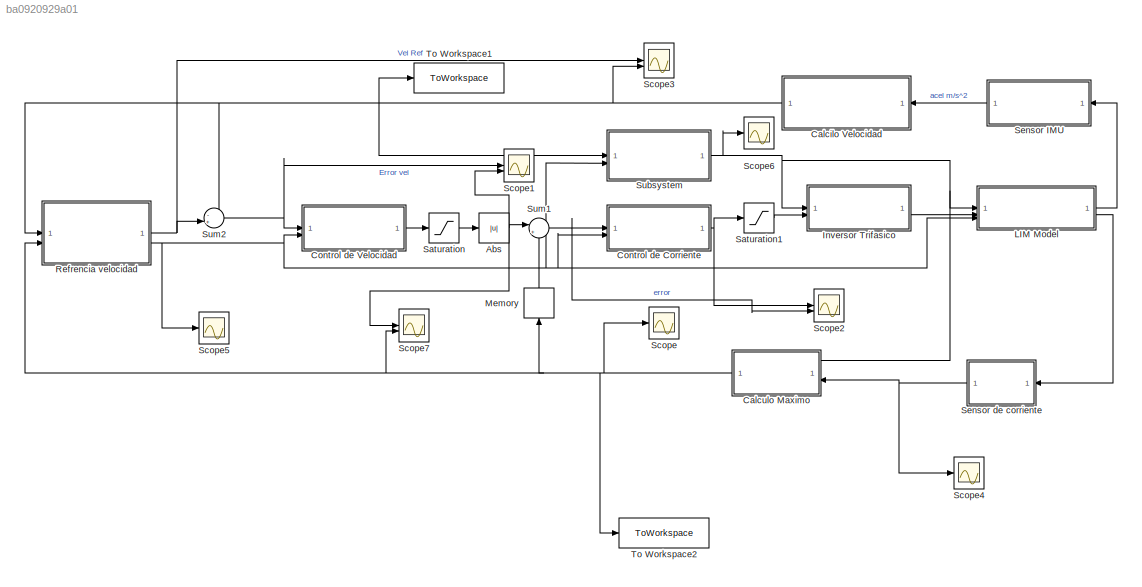
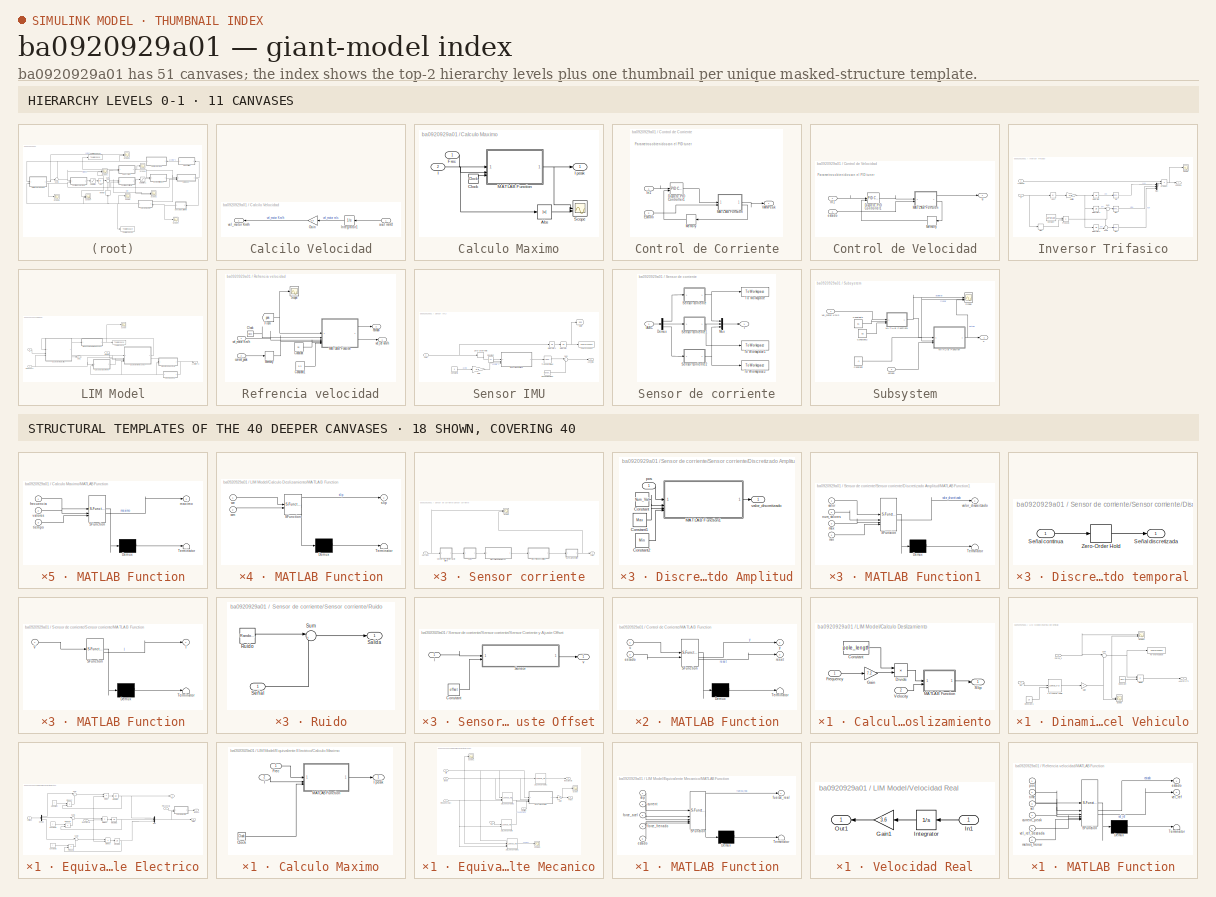
[diagram: thumbnail index - top-2 hierarchy levels (11 canvases) + 18 structural-template representatives of the remaining 40 canvases]
MODEL slx_ba0920929a01
KIND model
CONFIG AbsTol = auto
CONFIG EnableMultiTasking = off
CONFIG FixedStep = 0.01
CONFIG MaxStep = 0.00005
CONFIG MinStep = auto
CONFIG RelTol = 1e-3
CONFIG SampleTimeConstraint = Unconstrained
CONFIG SolverName = VariableStepAuto
CONFIG StartTime = 0.0
CONFIG StopTime = 6
BLOCK [Abs] Abs
  SaturateOnIntegerOverflow = off
BLOCK [SubSystem] Calcilo Velocidad
  NameLocation = top
BLOCK [Gain] Calcilo Velocidad/Gain
  Gain = 3.6
  NameLocation = top
BLOCK [Integrator] Calcilo Velocidad/Integrator1
  NameLocation = top
BLOCK [Inport] Calcilo Velocidad/acel m//s^2
BLOCK [Outport] Calcilo Velocidad/vel_motor Km//h
BLOCK [SubSystem] Calculo Maximo
  NameLocation = top
BLOCK [Abs] Calculo Maximo/Abs
  SaturateOnIntegerOverflow = off
BLOCK [Clock] Calculo Maximo/Clock
BLOCK [Inport] Calculo Maximo/Frec
BLOCK [Inport] Calculo Maximo/I
  Port = 2
BLOCK [Outport] Calculo Maximo/I peak
BLOCK [SubSystem] Calculo Maximo/MATLAB Function
  ErrorFcn = Stateflow.Translate.translate
  LibrarySourceBlock = simulink/User-Defined\nFunctions/MATLAB Function
  PermitHierarchicalResolution = ExplicitOnly
  SFBlockType = MATLAB Function
  TreatAsAtomicUnit = on
BLOCK [Demux] Calculo Maximo/MATLAB Function/ Demux 
  Outputs = 1
BLOCK [S-Function] Calculo Maximo/MATLAB Function/ SFunction 
  EnableBusSupport = on
  FunctionName = sf_sfun
  PortCounts = [3 2]
  SFcnIsStateOwnerBlock = off
  SFunctionDeploymentMode = off
  Tag = Stateflow S-Function 12
BLOCK [Terminator] Calculo Maximo/MATLAB Function/ Terminator 
BLOCK [Inport] Calculo Maximo/MATLAB Function/frecuencia
BLOCK [Outport] Calculo Maximo/MATLAB Function/maximo
BLOCK [Inport] Calculo Maximo/MATLAB Function/tiempo
  Port = 3
BLOCK [Inport] Calculo Maximo/MATLAB Function/valores
  Port = 2
BLOCK [Scope] Calculo Maximo/Scope
  Floating = off
  NumInputPorts = 2
  ScopeSpecificationString = Simulink.scopes.TimeScopeBlockCfg('CurrentConfiguration', extmgr.ConfigurationSet(extmgr.Configuration('Core','General UI',true),extmgr.Configuration('Core','Source UI',true),extmgr.Configuration('Sources','WiredSimulink',true,'DataLoggingVariableName','ScopeData1'),extmgr.Configuration('Visuals','Time Domain',true,'SerializedDisplays',{struct('MinYLimReal','-12.5','MaxYLimReal','112.5','YLabelRea...<+1457ch>
BLOCK [SubSystem] Control de Corriente
BLOCK [Reference] Control de Corriente/Discrete PID Controller1  REF=slpidlib/PID Controller
  LibrarySourceBlock = simulink/Discrete/Discrete PID Controller
  SourceBlock = slpidlib/PID Controller
  SourceType = PID 1dof
BLOCK [Inport] Control de Corriente/Estado
  Port = 2
BLOCK [Inport] Control de Corriente/In1
BLOCK [SubSystem] Control de Corriente/MATLAB Function
  ErrorFcn = Stateflow.Translate.translate
  LibrarySourceBlock = simulink/User-Defined\nFunctions/MATLAB Function
  PermitHierarchicalResolution = ExplicitOnly
  SFBlockType = MATLAB Function
  TreatAsAtomicUnit = on
BLOCK [Demux] Control de Corriente/MATLAB Function/ Demux 
  Outputs = 1
BLOCK [S-Function] Control de Corriente/MATLAB Function/ SFunction 
  EnableBusSupport = on
  FunctionName = sf_sfun
  PortCounts = [2 3]
  SFcnIsStateOwnerBlock = off
  SFunctionDeploymentMode = off
  Tag = Stateflow S-Function 11
BLOCK [Terminator] Control de Corriente/MATLAB Function/ Terminator 
BLOCK [Inport] Control de Corriente/MATLAB Function/estado
  Port = 2
BLOCK [Outport] Control de Corriente/MATLAB Function/reset
  Port = 2
BLOCK [Inport] Control de Corriente/MATLAB Function/u
BLOCK [Outport] Control de Corriente/MATLAB Function/y
BLOCK [Memory] Control de Corriente/Memory
BLOCK [Outport] Control de Corriente/VANPeak
BLOCK [SubSystem] Control de Velocidad
BLOCK [Reference] Control de Velocidad/Discrete PID Controller1  REF=slpidlib/PID Controller
  LibrarySourceBlock = simulink/Discrete/Discrete PID Controller
  SourceBlock = slpidlib/PID Controller
  SourceType = PID 1dof
BLOCK [Inport] Control de Velocidad/In1
BLOCK [SubSystem] Control de Velocidad/MATLAB Function
  ErrorFcn = Stateflow.Translate.translate
  LibrarySourceBlock = simulink/User-Defined\nFunctions/MATLAB Function
  PermitHierarchicalResolution = ExplicitOnly
  SFBlockType = MATLAB Function
  TreatAsAtomicUnit = on
BLOCK [Demux] Control de Velocidad/MATLAB Function/ Demux 
  Outputs = 1
BLOCK [S-Function] Control de Velocidad/MATLAB Function/ SFunction 
  EnableBusSupport = on
  FunctionName = sf_sfun
  PortCounts = [2 3]
  SFcnIsStateOwnerBlock = off
  SFunctionDeploymentMode = off
  Tag = Stateflow S-Function 19
BLOCK [Terminator] Control de Velocidad/MATLAB Function/ Terminator 
BLOCK [Inport] Control de Velocidad/MATLAB Function/estado
  Port = 2
BLOCK [Inport] Control de Velocidad/MATLAB Function/i
BLOCK [Outport] Control de Velocidad/MATLAB Function/i_ref
BLOCK [Outport] Control de Velocidad/MATLAB Function/reset
  Port = 2
BLOCK [Memory] Control de Velocidad/Memory
BLOCK [Inport] Control de Velocidad/estado
  Port = 2
BLOCK [Outport] Control de Velocidad/u
BLOCK [SubSystem] Inversor Trifasico
BLOCK [Abs] Inversor Trifasico/Abs1
  SaturateOnIntegerOverflow = off
BLOCK [Constant] Inversor Trifasico/Constant
  Value = 120*pi/180
BLOCK [Inport] Inversor Trifasico/F
BLOCK [Integrator] Inversor Trifasico/Integrator
  WrapState = on
  WrappedStateLowerValue = 0
  WrappedStateUpperValue = 2*pi
BLOCK [Integrator] Inversor Trifasico/Integrator1
  WrapState = on
  WrappedStateLowerValue = 0
  WrappedStateUpperValue = 2*pi
BLOCK [Integrator] Inversor Trifasico/Integrator2
  WrapState = on
  WrappedStateLowerValue = 0
  WrappedStateUpperValue = 2*pi
BLOCK [Gain] Inversor Trifasico/Multiply
  Gain = 2*pi
BLOCK [Mux] Inversor Trifasico/Mux
  DisplayOption = bar
  Inputs = 3
BLOCK [Product] Inversor Trifasico/Product
BLOCK [Product] Inversor Trifasico/Product1
BLOCK [Scope] Inversor Trifasico/Scope
  Floating = off
  NumInputPorts = 1
  ScopeSpecificationString = Simulink.scopes.TimeScopeBlockCfg('CurrentConfiguration', extmgr.ConfigurationSet(extmgr.Configuration('Core','General UI',true),extmgr.Configuration('Core','Source UI',true),extmgr.Configuration('Sources','WiredSimulink',true,'DataLoggingVariableName','ScopeData2'),extmgr.Configuration('Visuals','Time Domain',true,'SerializedDisplays',{struct('MinYLimReal','-130.67668','MaxYLimReal','131.95012','...<+1450ch>
BLOCK [Signum] Inversor Trifasico/Sign
BLOCK [Trigonometry] Inversor Trifasico/Sin
BLOCK [Trigonometry] Inversor Trifasico/Sin1
BLOCK [Trigonometry] Inversor Trifasico/Sin2
BLOCK [Sum] Inversor Trifasico/Sum
  Inputs = |++
BLOCK [Sum] Inversor Trifasico/Sum1
  Inputs = -+|
BLOCK [Inport] Inversor Trifasico/VANPeak
  Port = 2
BLOCK [Outport] Inversor Trifasico/VFaseN
BLOCK [SubSystem] LIM Model
BLOCK [Outport] LIM Model/Acel (m//s^2)
BLOCK [ModelReference] LIM Model/Bloque Calentamiento 1 Fase
  ModelNameDialog = Bloque_calentamiento.slx
  ModelReferenceVersion = 3.9
BLOCK [SubSystem] LIM Model/Calculo Deslizamiento
BLOCK [Constant] LIM Model/Calculo Deslizamiento/Constant
  Value = pole_length
BLOCK [Product] LIM Model/Calculo Deslizamiento/Divide
  Inputs = **
BLOCK [Inport] LIM Model/Calculo Deslizamiento/Frequency
BLOCK [Gain] LIM Model/Calculo Deslizamiento/Gain
  Gain = 7.2
BLOCK [SubSystem] LIM Model/Calculo Deslizamiento/MATLAB Function
  ErrorFcn = Stateflow.Translate.translate
  PermitHierarchicalResolution = ExplicitOnly
  SFBlockType = MATLAB Function
  TreatAsAtomicUnit = on
BLOCK [Demux] LIM Model/Calculo Deslizamiento/MATLAB Function/ Demux 
  Outputs = 1
BLOCK [S-Function] LIM Model/Calculo Deslizamiento/MATLAB Function/ SFunction 
  EnableBusSupport = on
  FunctionName = sf_sfun
  PortCounts = [2 2]
  SFcnIsStateOwnerBlock = off
  SFunctionDeploymentMode = off
  Tag = Stateflow S-Function 4
BLOCK [Terminator] LIM Model/Calculo Deslizamiento/MATLAB Function/ Terminator 
BLOCK [Outport] LIM Model/Calculo Deslizamiento/MATLAB Function/slip
BLOCK [Inport] LIM Model/Calculo Deslizamiento/MATLAB Function/we
BLOCK [Inport] LIM Model/Calculo Deslizamiento/MATLAB Function/wm
  Port = 2
BLOCK [Outport] LIM Model/Calculo Deslizamiento/Slip
BLOCK [Inport] LIM Model/Calculo Deslizamiento/Velocity
  Port = 2
BLOCK [SubSystem] LIM Model/Dinamica del Vehiculo
BLOCK [Lookup_n-D] LIM Model/Dinamica del Vehiculo/1-D Lookup Table
  BreakpointsForDimension1 = vel_drag
  BreakpointsForDimension2 = airgap_drag
  InputPortMap = u0,u1
  InternalRulePriority = Speed
  RndMeth = Simplest
  Table = Force_drag
BLOCK [Outport] LIM Model/Dinamica del Vehiculo/Acel m//s^2
BLOCK [Constant] LIM Model/Dinamica del Vehiculo/Constant
  Value = mass
BLOCK [Constant] LIM Model/Dinamica del Vehiculo/Constant1
  Value = 18
BLOCK [Product] LIM Model/Dinamica del Vehiculo/Divide
  Inputs = */
BLOCK [Inport] LIM Model/Dinamica del Vehiculo/Force_x
BLOCK [Gain] LIM Model/Dinamica del Vehiculo/Gain
  Gain = 4
BLOCK [Scope] LIM Model/Dinamica del Vehiculo/Scope
  Floating = off
  NumInputPorts = 2
  ScopeSpecificationString = Simulink.scopes.TimeScopeBlockCfg('CurrentConfiguration', extmgr.ConfigurationSet(extmgr.Configuration('Core','General UI',true),extmgr.Configuration('Core','Source UI',true),extmgr.Configuration('Sources','WiredSimulink',true,'DataLoggingVariableName','ScopeData11'),extmgr.Configuration('Visuals','Time Domain',true,'SerializedDisplays',{struct('MinYLimReal','-1647.75266','MaxYLimReal','1377.18397...<+1465ch>
BLOCK [Scope] LIM Model/Dinamica del Vehiculo/Scope1
  Floating = off
  NumInputPorts = 2
  ScopeSpecificationString = Simulink.scopes.TimeScopeBlockCfg('CurrentConfiguration', extmgr.ConfigurationSet(extmgr.Configuration('Core','General UI',true),extmgr.Configuration('Core','Source UI',true),extmgr.Configuration('Sources','WiredSimulink',true,'DataLoggingVariableName','ScopeData3'),extmgr.Configuration('Visuals','Time Domain',true,'SerializedDisplays',{struct('MinYLimReal','-1668.56051','MaxYLimReal','1511.32846'...<+1512ch>
BLOCK [Sum] LIM Model/Dinamica del Vehiculo/Sum
  Inputs = |+-
BLOCK [ToWorkspace] LIM Model/Dinamica del Vehiculo/To Workspace
  FixptAsFi = on
  MaxDataPoints = inf
  SampleTime = -1
  VariableName = fuerza_neta
BLOCK [Inport] LIM Model/Dinamica del Vehiculo/Vel
  Port = 2
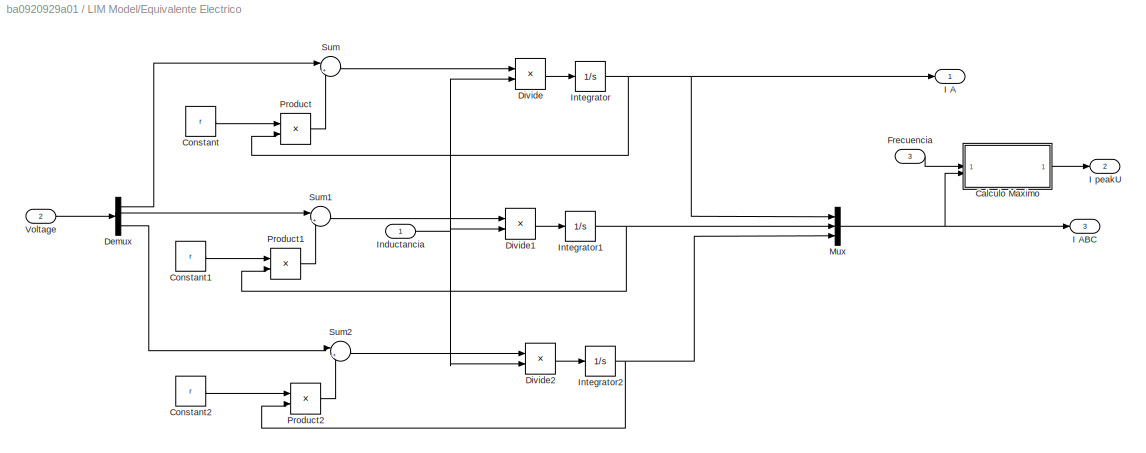
BLOCK [SubSystem] LIM Model/Equivalente Electrico
BLOCK [SubSystem] LIM Model/Equivalente Electrico/Calculo Maximo
BLOCK [Clock] LIM Model/Equivalente Electrico/Calculo Maximo/Clock
BLOCK [Inport] LIM Model/Equivalente Electrico/Calculo Maximo/Frec
BLOCK [Inport] LIM Model/Equivalente Electrico/Calculo Maximo/I
  Port = 2
BLOCK [Outport] LIM Model/Equivalente Electrico/Calculo Maximo/I peak
BLOCK [SubSystem] LIM Model/Equivalente Electrico/Calculo Maximo/MATLAB Function
  ErrorFcn = Stateflow.Translate.translate
  LibrarySourceBlock = simulink/User-Defined\nFunctions/MATLAB Function
  PermitHierarchicalResolution = ExplicitOnly
  SFBlockType = MATLAB Function
  TreatAsAtomicUnit = on
BLOCK [Demux] LIM Model/Equivalente Electrico/Calculo Maximo/MATLAB Function/ Demux 
  Outputs = 1
BLOCK [S-Function] LIM Model/Equivalente Electrico/Calculo Maximo/MATLAB Function/ SFunction 
  EnableBusSupport = on
  FunctionName = sf_sfun
  PortCounts = [3 2]
  SFcnIsStateOwnerBlock = off
  SFunctionDeploymentMode = off
  Tag = Stateflow S-Function 3
BLOCK [Terminator] LIM Model/Equivalente Electrico/Calculo Maximo/MATLAB Function/ Terminator 
BLOCK [Inport] LIM Model/Equivalente Electrico/Calculo Maximo/MATLAB Function/frecuencia
BLOCK [Outport] LIM Model/Equivalente Electrico/Calculo Maximo/MATLAB Function/maximo
BLOCK [Inport] LIM Model/Equivalente Electrico/Calculo Maximo/MATLAB Function/tiempo
  Port = 3
BLOCK [Inport] LIM Model/Equivalente Electrico/Calculo Maximo/MATLAB Function/valores
  Port = 2
BLOCK [Constant] LIM Model/Equivalente Electrico/Constant
  Value = r
BLOCK [Constant] LIM Model/Equivalente Electrico/Constant1
  Value = r
BLOCK [Constant] LIM Model/Equivalente Electrico/Constant2
  Value = r
BLOCK [Demux] LIM Model/Equivalente Electrico/Demux
  Outputs = 3
BLOCK [Product] LIM Model/Equivalente Electrico/Divide
  Inputs = */
BLOCK [Product] LIM Model/Equivalente Electrico/Divide1
  Inputs = */
BLOCK [Product] LIM Model/Equivalente Electrico/Divide2
  Inputs = */
BLOCK [Inport] LIM Model/Equivalente Electrico/Frecuencia
  Port = 3
BLOCK [Outport] LIM Model/Equivalente Electrico/I A
BLOCK [Outport] LIM Model/Equivalente Electrico/I ABC
  Port = 3
BLOCK [Outport] LIM Model/Equivalente Electrico/I peakU
  Port = 2
BLOCK [Inport] LIM Model/Equivalente Electrico/Inductancia
BLOCK [Integrator] LIM Model/Equivalente Electrico/Integrator
BLOCK [Integrator] LIM Model/Equivalente Electrico/Integrator1
BLOCK [Integrator] LIM Model/Equivalente Electrico/Integrator2
BLOCK [Mux] LIM Model/Equivalente Electrico/Mux
  DisplayOption = bar
  Inputs = 3
BLOCK [Product] LIM Model/Equivalente Electrico/Product
BLOCK [Product] LIM Model/Equivalente Electrico/Product1
BLOCK [Product] LIM Model/Equivalente Electrico/Product2
BLOCK [Sum] LIM Model/Equivalente Electrico/Sum
  Inputs = |+-
BLOCK [Sum] LIM Model/Equivalente Electrico/Sum1
  Inputs = |+-
BLOCK [Sum] LIM Model/Equivalente Electrico/Sum2
  Inputs = |+-
BLOCK [Inport] LIM Model/Equivalente Electrico/Voltage
  Port = 2
BLOCK [SubSystem] LIM Model/Equivalente Mecanico
BLOCK [Lookup_n-D] LIM Model/Equivalente Mecanico/1-D Lookup Table
  BreakpointsForDimension1 = vel_motor_freno
  BreakpointsForDimension2 = frecuencia_freno
  InputPortMap = u0,u1
  InternalRulePriority = Speed
  RndMeth = Simplest
  Table = FuerzaX_freno
BLOCK [Lookup_n-D] LIM Model/Equivalente Mecanico/1-D Lookup Table1
  BreakpointsForDimension1 = corriente_inductancia
  InputPortMap = u0
  InternalRulePriority = Speed
  NumberOfTableDimensions = 1
  RndMeth = Simplest
  Table = valores_inductancia
BLOCK [Lookup_n-D] LIM Model/Equivalente Mecanico/2-D Lookup Table1
  BreakpointsForDimension1 = slip
  BreakpointsForDimension2 = Ipeak
  BreakpointsForDimension3 = frecuencia
  InputPortMap = u0,u1,u2
  InternalRulePriority = Speed
  InterpMethod = Nearest
  NumberOfTableDimensions = 3
  RndMeth = Simplest
  Table = FuerzaY_acel
BLOCK [Lookup_n-D] LIM Model/Equivalente Mecanico/2-D Lookup Table2
  BreakpointsForDimension1 = slip
  BreakpointsForDimension2 = Ipeak
  BreakpointsForDimension3 = frecuencia
  InputPortMap = u0,u1,u2
  InternalRulePriority = Speed
  NumberOfTableDimensions = 3
  RndMeth = Simplest
  Table = FuerzaX_acel
BLOCK [Outport] LIM Model/Equivalente Mecanico/Force
  Port = 2
BLOCK [Inport] LIM Model/Equivalente Mecanico/Frequency (Hz)
  Port = 3
BLOCK [Gain] LIM Model/Equivalente Mecanico/Gain
  Gain = 1.3
BLOCK [Inport] LIM Model/Equivalente Mecanico/I peak
BLOCK [Outport] LIM Model/Equivalente Mecanico/Inductancia
BLOCK [SubSystem] LIM Model/Equivalente Mecanico/MATLAB Function
  ErrorFcn = Stateflow.Translate.translate
  LibrarySourceBlock = simulink/User-Defined\nFunctions/MATLAB Function
  PermitHierarchicalResolution = ExplicitOnly
  SFBlockType = MATLAB Function
  TreatAsAtomicUnit = on
BLOCK [Demux] LIM Model/Equivalente Mecanico/MATLAB Function/ Demux 
  Outputs = 1
BLOCK [S-Function] LIM Model/Equivalente Mecanico/MATLAB Function/ SFunction 
  EnableBusSupport = on
  FunctionName = sf_sfun
  PortCounts = [5 2]
  SFcnIsStateOwnerBlock = off
  SFunctionDeploymentMode = off
  Tag = Stateflow S-Function 1
BLOCK [Terminator] LIM Model/Equivalente Mecanico/MATLAB Function/ Terminator 
BLOCK [Inport] LIM Model/Equivalente Mecanico/MATLAB Function/current
  Port = 2
BLOCK [Inport] LIM Model/Equivalente Mecanico/MATLAB Function/estado
  Port = 5
BLOCK [Inport] LIM Model/Equivalente Mecanico/MATLAB Function/force_acel
  Port = 3
BLOCK [Inport] LIM Model/Equivalente Mecanico/MATLAB Function/force_frenado
  Port = 4
BLOCK [Outport] LIM Model/Equivalente Mecanico/MATLAB Function/fuerza_real
BLOCK [Inport] LIM Model/Equivalente Mecanico/MATLAB Function/slip
BLOCK [Scope] LIM Model/Equivalente Mecanico/Scope
  Floating = off
  NumInputPorts = 1
  ScopeSpecificationString = Simulink.scopes.TimeScopeBlockCfg('CurrentConfiguration', extmgr.ConfigurationSet(extmgr.Configuration('Core','General UI',true),extmgr.Configuration('Core','Source UI',true),extmgr.Configuration('Sources','WiredSimulink',true,'DataLoggingVariableName','ScopeData7'),extmgr.Configuration('Visuals','Time Domain',true,'SerializedDisplays',{struct('MinYLimReal','-1670.3769','MaxYLimReal','1586.95004',...<+1396ch>
BLOCK [Scope] LIM Model/Equivalente Mecanico/Scope1
  Floating = off
  NumInputPorts = 1
  ScopeSpecificationString = Simulink.scopes.TimeScopeBlockCfg('CurrentConfiguration', extmgr.ConfigurationSet(extmgr.Configuration('Core','General UI',true),extmgr.Configuration('Core','Source UI',true),extmgr.Configuration('Sources','WiredSimulink',true,'DataLoggingVariableName','ScopeData4'),extmgr.Configuration('Visuals','Time Domain',true,'SerializedDisplays',{struct('MinYLimReal','-6.96365','MaxYLimReal','2.24234','YLab...<+1407ch>
BLOCK [Scope] LIM Model/Equivalente Mecanico/Scope3
  Floating = off
  NumInputPorts = 1
  ScopeSpecificationString = Simulink.scopes.TimeScopeBlockCfg('CurrentConfiguration', extmgr.ConfigurationSet(extmgr.Configuration('Core','General UI',true),extmgr.Configuration('Core','Source UI',true),extmgr.Configuration('Sources','WiredSimulink',true,'DataLoggingVariableName','ScopeData1'),extmgr.Configuration('Visuals','Time Domain',true,'SerializedDisplays',{struct('MinYLimReal','-2646.34911','MaxYLimReal','1767.7025',...<+1440ch>
BLOCK [Inport] LIM Model/Equivalente Mecanico/Sentido
  Port = 2
BLOCK [Inport] LIM Model/Equivalente Mecanico/Slip
  Port = 4
BLOCK [Inport] LIM Model/Equivalente Mecanico/Vel
  Port = 5
BLOCK [Inport] LIM Model/Estado
  Port = 3
BLOCK [Inport] LIM Model/Frequency
BLOCK [Outport] LIM Model/IABC
  Port = 2
BLOCK [Scope] LIM Model/Scope
  Floating = off
  NumInputPorts = 1
  ScopeSpecificationString = Simulink.scopes.TimeScopeBlockCfg('CurrentConfiguration', extmgr.ConfigurationSet(extmgr.Configuration('Core','General UI',true),extmgr.Configuration('Core','Source UI',true),extmgr.Configuration('Sources','WiredSimulink',true,'DataLoggingVariableName','ScopeData1'),extmgr.Configuration('Visuals','Time Domain',true,'SerializedDisplays',{struct('MinYLimReal','37.43315','MaxYLimReal','63.10165','YLa...<+1392ch>
BLOCK [ToWorkspace] LIM Model/To Workspace
  FixptAsFi = on
  MaxDataPoints = inf
  SampleTime = -1
  SaveFormat = Timeseries
  VariableName = temp
BLOCK [Inport] LIM Model/V 
  Port = 2
BLOCK [SubSystem] LIM Model/Velocidad Real
  NameLocation = top
BLOCK [Gain] LIM Model/Velocidad Real/Gain1
  Gain = 3.6
  NameLocation = top
BLOCK [Inport] LIM Model/Velocidad Real/In1
  NameLocation = top
BLOCK [Integrator] LIM Model/Velocidad Real/Integrator
  NameLocation = top
BLOCK [Outport] LIM Model/Velocidad Real/Out1
BLOCK [Memory] Memory
  NameLocation = left
BLOCK [SubSystem] Refrencia velocidad
BLOCK [Clock] Refrencia velocidad/Clock
BLOCK [Constant] Refrencia velocidad/Constant
  Value = 35
BLOCK [Constant] Refrencia velocidad/Constant1
  Value = 9.3
BLOCK [From] Refrencia velocidad/From
  GotoTag = pos
  TagVisibility = global
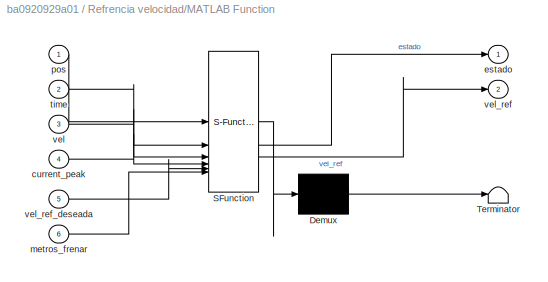
BLOCK [SubSystem] Refrencia velocidad/MATLAB Function
  ErrorFcn = Stateflow.Translate.translate
  LibrarySourceBlock = simulink/User-Defined\nFunctions/MATLAB Function
  PermitHierarchicalResolution = ExplicitOnly
  SFBlockType = MATLAB Function
  TreatAsAtomicUnit = on
BLOCK [Demux] Refrencia velocidad/MATLAB Function/ Demux 
  Outputs = 1
BLOCK [S-Function] Refrencia velocidad/MATLAB Function/ SFunction 
  EnableBusSupport = on
  FunctionName = sf_sfun
  PortCounts = [6 3]
  SFcnIsStateOwnerBlock = off
  SFunctionDeploymentMode = off
  Tag = Stateflow S-Function 18
BLOCK [Terminator] Refrencia velocidad/MATLAB Function/ Terminator 
BLOCK [Inport] Refrencia velocidad/MATLAB Function/current_peak
  Port = 4
BLOCK [Outport] Refrencia velocidad/MATLAB Function/estado
BLOCK [Inport] Refrencia velocidad/MATLAB Function/metros_frenar
  Port = 6
BLOCK [Inport] Refrencia velocidad/MATLAB Function/pos
BLOCK [Inport] Refrencia velocidad/MATLAB Function/time
  Port = 2
BLOCK [Inport] Refrencia velocidad/MATLAB Function/vel
  Port = 3
BLOCK [Outport] Refrencia velocidad/MATLAB Function/vel_ref
  Port = 2
BLOCK [Inport] Refrencia velocidad/MATLAB Function/vel_ref_deseada
  Port = 5
BLOCK [Memory] Refrencia velocidad/Memory
BLOCK [Scope] Refrencia velocidad/Scope
  Floating = off
  NumInputPorts = 1
  ScopeSpecificationString = Simulink.scopes.TimeScopeBlockCfg('CurrentConfiguration', extmgr.ConfigurationSet(extmgr.Configuration('Core','General UI',true),extmgr.Configuration('Core','Source UI',true),extmgr.Configuration('Sources','WiredSimulink',true,'DataLoggingVariableName','ScopeData4'),extmgr.Configuration('Visuals','Time Domain',true,'SerializedDisplays',{struct('MinYLimReal','-2.62741','MaxYLimReal','23.64668','YLa...<+1417ch>
BLOCK [Inport] Refrencia velocidad/current_peak
  Port = 2
BLOCK [Outport] Refrencia velocidad/estado
  Port = 2
BLOCK [Inport] Refrencia velocidad/vel_motor Km//h
BLOCK [Outport] Refrencia velocidad/vel_ref km//h
BLOCK [Saturate] Saturation
  LowerLimit = -100
  UpperLimit = 100
BLOCK [Saturate] Saturation1
  LowerLimit = 0
  UpperLimit = 200/sqrt(3)
BLOCK [Scope] Scope
  Floating = off
  NumInputPorts = 1
  ScopeSpecificationString = Simulink.scopes.TimeScopeBlockCfg('CurrentConfiguration', extmgr.ConfigurationSet(extmgr.Configuration('Core','General UI',true),extmgr.Configuration('Core','Source UI',true),extmgr.Configuration('Sources','WiredSimulink',true,'DataLoggingVariableName','ScopeData1'),extmgr.Configuration('Visuals','Time Domain',true,'SerializedDisplays',{struct('MinYLimReal','-12.18658','MaxYLimReal','112.62906','Y...<+1431ch>
BLOCK [Scope] Scope1
  Floating = off
  NumInputPorts = 2
  ScopeSpecificationString = Simulink.scopes.TimeScopeBlockCfg('CurrentConfiguration', extmgr.ConfigurationSet(extmgr.Configuration('Core','General UI',true),extmgr.Configuration('Core','Source UI',true),extmgr.Configuration('Sources','WiredSimulink',true,'DataLoggingVariableName','ScopeData2'),extmgr.Configuration('Visuals','Time Domain',true,'SerializedDisplays',{struct('MinYLimReal','-50.25925','MaxYLimReal','116.69547','Y...<+1457ch>
BLOCK [Scope] Scope2
  Floating = off
  NumInputPorts = 2
  ScopeSpecificationString = Simulink.scopes.TimeScopeBlockCfg('CurrentConfiguration', extmgr.ConfigurationSet(extmgr.Configuration('Core','General UI',true),extmgr.Configuration('Core','Source UI',true),extmgr.Configuration('Sources','WiredSimulink',true,'DataLoggingVariableName','ScopeData3'),extmgr.Configuration('Visuals','Time Domain',true,'SerializedDisplays',{struct('MinYLimReal','-143.10841','MaxYLimReal','220.92567','...<+1447ch>
BLOCK [Scope] Scope3
  Floating = off
  NumInputPorts = 2
  ScopeSpecificationString = Simulink.scopes.TimeScopeBlockCfg('CurrentConfiguration', extmgr.ConfigurationSet(extmgr.Configuration('Core','General UI',true),extmgr.Configuration('Core','Source UI',true),extmgr.Configuration('Sources','WiredSimulink',true,'DataLoggingVariableName','ScopeData1'),extmgr.Configuration('Visuals','Time Domain',true,'SerializedDisplays',{struct('MinYLimReal','-4.44674','MaxYLimReal','39.63122','YLa...<+1558ch>
BLOCK [Scope] Scope4
  Floating = off
  NumInputPorts = 1
  ScopeSpecificationString = Simulink.scopes.TimeScopeBlockCfg('CurrentConfiguration', extmgr.ConfigurationSet(extmgr.Configuration('Core','General UI',true),extmgr.Configuration('Core','Source UI',true),extmgr.Configuration('Sources','WiredSimulink',true,'DataLoggingVariableName','ScopeData5'),extmgr.Configuration('Visuals','Time Domain',true,'SerializedDisplays',{struct('MinYLimReal','-125.27655','MaxYLimReal','124.53909','...<+1512ch>
BLOCK [Scope] Scope5
  Floating = off
  NumInputPorts = 1
  ScopeSpecificationString = Simulink.scopes.TimeScopeBlockCfg('CurrentConfiguration', extmgr.ConfigurationSet(extmgr.Configuration('Core','General UI',true),extmgr.Configuration('Core','Source UI',true),extmgr.Configuration('Sources','WiredSimulink',true,'DataLoggingVariableName','ScopeData6'),extmgr.Configuration('Visuals','Time Domain',true,'SerializedDisplays',{struct('MinYLimReal','-0.375','MaxYLimReal','3.375','YLabelRe...<+1445ch>
BLOCK [Scope] Scope6
  Floating = off
  NumInputPorts = 1
  ScopeSpecificationString = Simulink.scopes.TimeScopeBlockCfg('CurrentConfiguration', extmgr.ConfigurationSet(extmgr.Configuration('Core','General UI',true),extmgr.Configuration('Core','Source UI',true),extmgr.Configuration('Sources','WiredSimulink',true,'DataLoggingVariableName','ScopeData1'),extmgr.Configuration('Visuals','Time Domain',true,'SerializedDisplays',{struct('MinYLimReal','-10.00000','MaxYLimReal','10.00000','YL...<+1426ch>
BLOCK [Scope] Scope7
  Floating = off
  NumInputPorts = 2
  ScopeSpecificationString = Simulink.scopes.TimeScopeBlockCfg('CurrentConfiguration', extmgr.ConfigurationSet(extmgr.Configuration('Core','General UI',true),extmgr.Configuration('Core','Source UI',true),extmgr.Configuration('Sources','WiredSimulink',true,'DataLoggingVariableName','ScopeData1'),extmgr.Configuration('Visuals','Time Domain',true,'SerializedDisplays',{struct('MinYLimReal','-12.61062','MaxYLimReal','113.49558','Y...<+1462ch>
BLOCK [SubSystem] Sensor IMU
  NameLocation = top
BLOCK [Inport] Sensor IMU/Acel
BLOCK [Outport] Sensor IMU/Acel_IMU
BLOCK [Constant] Sensor IMU/Constant
  Value = 16
BLOCK [Constant] Sensor IMU/Constant1
  Value = 8
BLOCK [Gain] Sensor IMU/Gain
  Gain = 9.8
BLOCK [Goto] Sensor IMU/Goto
  GotoTag = pos
  TagVisibility = global
BLOCK [Integrator] Sensor IMU/Integrator
BLOCK [Integrator] Sensor IMU/Integrator1
BLOCK [SubSystem] Sensor IMU/MATLAB Function1
  ErrorFcn = Stateflow.Translate.translate
  LibrarySourceBlock = simulink/User-Defined\nFunctions/MATLAB Function
  PermitHierarchicalResolution = ExplicitOnly
  SFBlockType = MATLAB Function
  TreatAsAtomicUnit = on
BLOCK [Demux] Sensor IMU/MATLAB Function1/ Demux 
  Outputs = 1
BLOCK [S-Function] Sensor IMU/MATLAB Function1/ SFunction 
  EnableBusSupport = on
  FunctionName = sf_sfun
  PortCounts = [3 2]
  SFcnIsStateOwnerBlock = off
  SFunctionDeploymentMode = off
  Tag = Stateflow S-Function 9
BLOCK [Terminator] Sensor IMU/MATLAB Function1/ Terminator 
BLOCK [Inport] Sensor IMU/MATLAB Function1/max
  Port = 3
BLOCK [Inport] Sensor IMU/MATLAB Function1/num_bits
  Port = 2
BLOCK [Inport] Sensor IMU/MATLAB Function1/valor
BLOCK [Outport] Sensor IMU/MATLAB Function1/valor_discreitzado
BLOCK [RandomNumber] Sensor IMU/Random Number
  SampleTime = 0.001
  Variance = 0.1
BLOCK [Sum] Sensor IMU/Sum
  Inputs = |++
BLOCK [ToWorkspace] Sensor IMU/To Workspace
  FixptAsFi = on
  MaxDataPoints = inf
  SampleTime = -1
  VariableName = pos
BLOCK [TransportDelay] Sensor IMU/Transport Delay
  DelayTime = 0.001
BLOCK [ZeroOrderHold] Sensor IMU/Zero-Order Hold
  SampleTime = 0.001
BLOCK [SubSystem] Sensor de corriente
  NameLocation = top
BLOCK [Demux] Sensor de corriente/Demux
  Outputs = 3
BLOCK [Outport] Sensor de corriente/I
BLOCK [Inport] Sensor de corriente/IABC
BLOCK [Mux] Sensor de corriente/Mux
  DisplayOption = bar
  Inputs = 3
BLOCK [SubSystem] Sensor de corriente/Sensor corriente
BLOCK [Inport] Sensor de corriente/Sensor corriente/Current
BLOCK [SubSystem] Sensor de corriente/Sensor corriente/Discretizado Amplitud
BLOCK [Constant] Sensor de corriente/Sensor corriente/Discretizado Amplitud/Constant
  Value = Num_Val
BLOCK [Constant] Sensor de corriente/Sensor corriente/Discretizado Amplitud/Constant1
  Value = Max
BLOCK [Constant] Sensor de corriente/Sensor corriente/Discretizado Amplitud/Constant2
  Value = Min
BLOCK [SubSystem] Sensor de corriente/Sensor corriente/Discretizado Amplitud/MATLAB Function1
  ErrorFcn = Stateflow.Translate.translate
  LibrarySourceBlock = simulink/User-Defined\nFunctions/MATLAB Function
  PermitHierarchicalResolution = ExplicitOnly
  SFBlockType = MATLAB Function
  TreatAsAtomicUnit = on
BLOCK [Demux] Sensor de corriente/Sensor corriente/Discretizado Amplitud/MATLAB Function1/ Demux 
  Outputs = 1
BLOCK [S-Function] Sensor de corriente/Sensor corriente/Discretizado Amplitud/MATLAB Function1/ SFunction 
  EnableBusSupport = on
  FunctionName = sf_sfun
  PortCounts = [4 2]
  SFcnIsStateOwnerBlock = off
  SFunctionDeploymentMode = off
  Tag = Stateflow S-Function 2
BLOCK [Terminator] Sensor de corriente/Sensor corriente/Discretizado Amplitud/MATLAB Function1/ Terminator 
BLOCK [Inport] Sensor de corriente/Sensor corriente/Discretizado Amplitud/MATLAB Function1/max
  Port = 3
BLOCK [Inport] Sensor de corriente/Sensor corriente/Discretizado Amplitud/MATLAB Function1/min
  Port = 4
BLOCK [Inport] Sensor de corriente/Sensor corriente/Discretizado Amplitud/MATLAB Function1/num_valores
  Port = 2
BLOCK [Inport] Sensor de corriente/Sensor corriente/Discretizado Amplitud/MATLAB Function1/valor
BLOCK [Outport] Sensor de corriente/Sensor corriente/Discretizado Amplitud/MATLAB Function1/valor_discreitzado
BLOCK [Inport] Sensor de corriente/Sensor corriente/Discretizado Amplitud/pos
BLOCK [Outport] Sensor de corriente/Sensor corriente/Discretizado Amplitud/valor_discreitzado
BLOCK [SubSystem] Sensor de corriente/Sensor corriente/Discretizado temporal
BLOCK [Inport] Sensor de corriente/Sensor corriente/Discretizado temporal/Señal continua
BLOCK [Outport] Sensor de corriente/Sensor corriente/Discretizado temporal/Señal discretizada
BLOCK [ZeroOrderHold] Sensor de corriente/Sensor corriente/Discretizado temporal/Zero-Order Hold
  SampleTime = Tiempo_Discretizado
BLOCK [SubSystem] Sensor de corriente/Sensor corriente/MATLAB Function
  ErrorFcn = Stateflow.Translate.translate
  LibrarySourceBlock = simulink/User-Defined\nFunctions/MATLAB Function
  PermitHierarchicalResolution = ExplicitOnly
  SFBlockType = MATLAB Function
  TreatAsAtomicUnit = on
BLOCK [Demux] Sensor de corriente/Sensor corriente/MATLAB Function/ Demux 
  Outputs = 1
BLOCK [S-Function] Sensor de corriente/Sensor corriente/MATLAB Function/ SFunction 
  EnableBusSupport = on
  FunctionName = sf_sfun
  PortCounts = [1 2]
  SFcnIsStateOwnerBlock = off
  SFunctionDeploymentMode = off
  Tag = Stateflow S-Function 8
BLOCK [Terminator] Sensor de corriente/Sensor corriente/MATLAB Function/ Terminator 
BLOCK [Outport] Sensor de corriente/Sensor corriente/MATLAB Function/I
BLOCK [Inport] Sensor de corriente/Sensor corriente/MATLAB Function/V
BLOCK [SubSystem] Sensor de corriente/Sensor corriente/Ruido
BLOCK [RandomNumber] Sensor de corriente/Sensor corriente/Ruido/Ruido
  Mean = M
  SampleTime = T
  Seed = 10
  Variance = V
BLOCK [Outport] Sensor de corriente/Sensor corriente/Ruido/Salida
BLOCK [Inport] Sensor de corriente/Sensor corriente/Ruido/Señal
BLOCK [Sum] Sensor de corriente/Sensor corriente/Ruido/Sum
  Inputs = |++
BLOCK [Scope] Sensor de corriente/Sensor corriente/Scope
  Floating = off
  NumInputPorts = 2
  ScopeSpecificationString = Simulink.scopes.TimeScopeBlockCfg('CurrentConfiguration', extmgr.ConfigurationSet(extmgr.Configuration('Core','General UI',true),extmgr.Configuration('Core','Source UI',true),extmgr.Configuration('Sources','WiredSimulink',true,'DataLoggingVariableName','ScopeData2'),extmgr.Configuration('Visuals','Time Domain',true,'SerializedDisplays',{struct('MinYLimReal','-117.8959','MaxYLimReal','109.11113','Y...<+1467ch>  <repeated x3 — deduplicated; at blocks: Scope>
BLOCK [SubSystem] Sensor de corriente/Sensor corriente/Sensor Corriente y Ajuste Offset
BLOCK [Constant] Sensor de corriente/Sensor corriente/Sensor Corriente y Ajuste Offset/Constant
  Value = offset
BLOCK [Inport] Sensor de corriente/Sensor corriente/Sensor Corriente y Ajuste Offset/I
BLOCK [SubSystem] Sensor de corriente/Sensor corriente/Sensor Corriente y Ajuste Offset/Sensor
  ErrorFcn = Stateflow.Translate.translate
  LibrarySourceBlock = simulink/User-Defined\nFunctions/MATLAB Function
  PermitHierarchicalResolution = ExplicitOnly
  SFBlockType = MATLAB Function
  TreatAsAtomicUnit = on
BLOCK [Demux] Sensor de corriente/Sensor corriente/Sensor Corriente y Ajuste Offset/Sensor/ Demux 
  Outputs = 1
BLOCK [S-Function] Sensor de corriente/Sensor corriente/Sensor Corriente y Ajuste Offset/Sensor/ SFunction 
  EnableBusSupport = on
  FunctionName = sf_sfun
  PortCounts = [2 2]
  SFcnIsStateOwnerBlock = off
  SFunctionDeploymentMode = off
  Tag = Stateflow S-Function 10
BLOCK [Terminator] Sensor de corriente/Sensor corriente/Sensor Corriente y Ajuste Offset/Sensor/ Terminator 
BLOCK [Inport] Sensor de corriente/Sensor corriente/Sensor Corriente y Ajuste Offset/Sensor/I
BLOCK [Outport] Sensor de corriente/Sensor corriente/Sensor Corriente y Ajuste Offset/Sensor/V_o
BLOCK [Inport] Sensor de corriente/Sensor corriente/Sensor Corriente y Ajuste Offset/Sensor/offset
  Port = 2
BLOCK [Outport] Sensor de corriente/Sensor corriente/Sensor Corriente y Ajuste Offset/v
BLOCK [Outport] Sensor de corriente/Sensor corriente/valor
BLOCK [SubSystem] Sensor de corriente/Sensor corriente1
BLOCK [Inport] Sensor de corriente/Sensor corriente1/Current
BLOCK [SubSystem] Sensor de corriente/Sensor corriente1/Discretizado Amplitud
BLOCK [Constant] Sensor de corriente/Sensor corriente1/Discretizado Amplitud/Constant
  Value = Num_Val
BLOCK [Constant] Sensor de corriente/Sensor corriente1/Discretizado Amplitud/Constant1
  Value = Max
BLOCK [Constant] Sensor de corriente/Sensor corriente1/Discretizado Amplitud/Constant2
  Value = Min
BLOCK [SubSystem] Sensor de corriente/Sensor corriente1/Discretizado Amplitud/MATLAB Function1
  ErrorFcn = Stateflow.Translate.translate
  LibrarySourceBlock = simulink/User-Defined\nFunctions/MATLAB Function
  PermitHierarchicalResolution = ExplicitOnly
  SFBlockType = MATLAB Function
  TreatAsAtomicUnit = on
BLOCK [Demux] Sensor de corriente/Sensor corriente1/Discretizado Amplitud/MATLAB Function1/ Demux 
  Outputs = 1
BLOCK [S-Function] Sensor de corriente/Sensor corriente1/Discretizado Amplitud/MATLAB Function1/ SFunction 
  EnableBusSupport = on
  FunctionName = sf_sfun
  PortCounts = [4 2]
  SFcnIsStateOwnerBlock = off
  SFunctionDeploymentMode = off
  Tag = Stateflow S-Function 7
BLOCK [Terminator] Sensor de corriente/Sensor corriente1/Discretizado Amplitud/MATLAB Function1/ Terminator 
BLOCK [Inport] Sensor de corriente/Sensor corriente1/Discretizado Amplitud/MATLAB Function1/max
  Port = 3
BLOCK [Inport] Sensor de corriente/Sensor corriente1/Discretizado Amplitud/MATLAB Function1/min
  Port = 4
BLOCK [Inport] Sensor de corriente/Sensor corriente1/Discretizado Amplitud/MATLAB Function1/num_valores
  Port = 2
BLOCK [Inport] Sensor de corriente/Sensor corriente1/Discretizado Amplitud/MATLAB Function1/valor
BLOCK [Outport] Sensor de corriente/Sensor corriente1/Discretizado Amplitud/MATLAB Function1/valor_discreitzado
BLOCK [Inport] Sensor de corriente/Sensor corriente1/Discretizado Amplitud/pos
BLOCK [Outport] Sensor de corriente/Sensor corriente1/Discretizado Amplitud/valor_discreitzado
BLOCK [SubSystem] Sensor de corriente/Sensor corriente1/Discretizado temporal
BLOCK [Inport] Sensor de corriente/Sensor corriente1/Discretizado temporal/Señal continua
BLOCK [Outport] Sensor de corriente/Sensor corriente1/Discretizado temporal/Señal discretizada
BLOCK [ZeroOrderHold] Sensor de corriente/Sensor corriente1/Discretizado temporal/Zero-Order Hold
  SampleTime = Tiempo_Discretizado
BLOCK [SubSystem] Sensor de corriente/Sensor corriente1/MATLAB Function
  ErrorFcn = Stateflow.Translate.translate
  LibrarySourceBlock = simulink/User-Defined\nFunctions/MATLAB Function
  PermitHierarchicalResolution = ExplicitOnly
  SFBlockType = MATLAB Function
  TreatAsAtomicUnit = on
BLOCK [Demux] Sensor de corriente/Sensor corriente1/MATLAB Function/ Demux 
  Outputs = 1
BLOCK [S-Function] Sensor de corriente/Sensor corriente1/MATLAB Function/ SFunction 
  EnableBusSupport = on
  FunctionName = sf_sfun
  PortCounts = [1 2]
  SFcnIsStateOwnerBlock = off
  SFunctionDeploymentMode = off
  Tag = Stateflow S-Function 13
BLOCK [Terminator] Sensor de corriente/Sensor corriente1/MATLAB Function/ Terminator 
BLOCK [Outport] Sensor de corriente/Sensor corriente1/MATLAB Function/I
BLOCK [Inport] Sensor de corriente/Sensor corriente1/MATLAB Function/V
BLOCK [SubSystem] Sensor de corriente/Sensor corriente1/Ruido
BLOCK [RandomNumber] Sensor de corriente/Sensor corriente1/Ruido/Ruido
  Mean = M
  SampleTime = T
  Seed = 10
  Variance = V
BLOCK [Outport] Sensor de corriente/Sensor corriente1/Ruido/Salida
BLOCK [Inport] Sensor de corriente/Sensor corriente1/Ruido/Señal
BLOCK [Sum] Sensor de corriente/Sensor corriente1/Ruido/Sum
  Inputs = |++
BLOCK [Scope] Sensor de corriente/Sensor corriente1/Scope
  Floating = off
  NumInputPorts = 2
BLOCK [SubSystem] Sensor de corriente/Sensor corriente1/Sensor Corriente y Ajuste Offset
BLOCK [Constant] Sensor de corriente/Sensor corriente1/Sensor Corriente y Ajuste Offset/Constant
  Value = offset
BLOCK [Inport] Sensor de corriente/Sensor corriente1/Sensor Corriente y Ajuste Offset/I
BLOCK [SubSystem] Sensor de corriente/Sensor corriente1/Sensor Corriente y Ajuste Offset/Sensor
  ErrorFcn = Stateflow.Translate.translate
  LibrarySourceBlock = simulink/User-Defined\nFunctions/MATLAB Function
  PermitHierarchicalResolution = ExplicitOnly
  SFBlockType = MATLAB Function
  TreatAsAtomicUnit = on
BLOCK [Demux] Sensor de corriente/Sensor corriente1/Sensor Corriente y Ajuste Offset/Sensor/ Demux 
  Outputs = 1
BLOCK [S-Function] Sensor de corriente/Sensor corriente1/Sensor Corriente y Ajuste Offset/Sensor/ SFunction 
  EnableBusSupport = on
  FunctionName = sf_sfun
  PortCounts = [2 2]
  SFcnIsStateOwnerBlock = off
  SFunctionDeploymentMode = off
  Tag = Stateflow S-Function 14
BLOCK [Terminator] Sensor de corriente/Sensor corriente1/Sensor Corriente y Ajuste Offset/Sensor/ Terminator 
BLOCK [Inport] Sensor de corriente/Sensor corriente1/Sensor Corriente y Ajuste Offset/Sensor/I
BLOCK [Outport] Sensor de corriente/Sensor corriente1/Sensor Corriente y Ajuste Offset/Sensor/V_o
BLOCK [Inport] Sensor de corriente/Sensor corriente1/Sensor Corriente y Ajuste Offset/Sensor/offset
  Port = 2
BLOCK [Outport] Sensor de corriente/Sensor corriente1/Sensor Corriente y Ajuste Offset/v
BLOCK [Outport] Sensor de corriente/Sensor corriente1/valor
BLOCK [SubSystem] Sensor de corriente/Sensor corriente2
BLOCK [Inport] Sensor de corriente/Sensor corriente2/Current
BLOCK [SubSystem] Sensor de corriente/Sensor corriente2/Discretizado Amplitud
BLOCK [Constant] Sensor de corriente/Sensor corriente2/Discretizado Amplitud/Constant
  Value = Num_Val
BLOCK [Constant] Sensor de corriente/Sensor corriente2/Discretizado Amplitud/Constant1
  Value = Max
BLOCK [Constant] Sensor de corriente/Sensor corriente2/Discretizado Amplitud/Constant2
  Value = Min
BLOCK [SubSystem] Sensor de corriente/Sensor corriente2/Discretizado Amplitud/MATLAB Function1
  ErrorFcn = Stateflow.Translate.translate
  LibrarySourceBlock = simulink/User-Defined\nFunctions/MATLAB Function
  PermitHierarchicalResolution = ExplicitOnly
  SFBlockType = MATLAB Function
  TreatAsAtomicUnit = on
BLOCK [Demux] Sensor de corriente/Sensor corriente2/Discretizado Amplitud/MATLAB Function1/ Demux 
  Outputs = 1
BLOCK [S-Function] Sensor de corriente/Sensor corriente2/Discretizado Amplitud/MATLAB Function1/ SFunction 
  EnableBusSupport = on
  FunctionName = sf_sfun
  PortCounts = [4 2]
  SFcnIsStateOwnerBlock = off
  SFunctionDeploymentMode = off
  Tag = Stateflow S-Function 15
BLOCK [Terminator] Sensor de corriente/Sensor corriente2/Discretizado Amplitud/MATLAB Function1/ Terminator 
BLOCK [Inport] Sensor de corriente/Sensor corriente2/Discretizado Amplitud/MATLAB Function1/max
  Port = 3
BLOCK [Inport] Sensor de corriente/Sensor corriente2/Discretizado Amplitud/MATLAB Function1/min
  Port = 4
BLOCK [Inport] Sensor de corriente/Sensor corriente2/Discretizado Amplitud/MATLAB Function1/num_valores
  Port = 2
BLOCK [Inport] Sensor de corriente/Sensor corriente2/Discretizado Amplitud/MATLAB Function1/valor
BLOCK [Outport] Sensor de corriente/Sensor corriente2/Discretizado Amplitud/MATLAB Function1/valor_discreitzado
BLOCK [Inport] Sensor de corriente/Sensor corriente2/Discretizado Amplitud/pos
BLOCK [Outport] Sensor de corriente/Sensor corriente2/Discretizado Amplitud/valor_discreitzado
BLOCK [SubSystem] Sensor de corriente/Sensor corriente2/Discretizado temporal
BLOCK [Inport] Sensor de corriente/Sensor corriente2/Discretizado temporal/Señal continua
BLOCK [Outport] Sensor de corriente/Sensor corriente2/Discretizado temporal/Señal discretizada
BLOCK [ZeroOrderHold] Sensor de corriente/Sensor corriente2/Discretizado temporal/Zero-Order Hold
  SampleTime = Tiempo_Discretizado
BLOCK [SubSystem] Sensor de corriente/Sensor corriente2/MATLAB Function
  ErrorFcn = Stateflow.Translate.translate
  LibrarySourceBlock = simulink/User-Defined\nFunctions/MATLAB Function
  PermitHierarchicalResolution = ExplicitOnly
  SFBlockType = MATLAB Function
  TreatAsAtomicUnit = on
BLOCK [Demux] Sensor de corriente/Sensor corriente2/MATLAB Function/ Demux 
  Outputs = 1
BLOCK [S-Function] Sensor de corriente/Sensor corriente2/MATLAB Function/ SFunction 
  EnableBusSupport = on
  FunctionName = sf_sfun
  PortCounts = [1 2]
  SFcnIsStateOwnerBlock = off
  SFunctionDeploymentMode = off
  Tag = Stateflow S-Function 16
BLOCK [Terminator] Sensor de corriente/Sensor corriente2/MATLAB Function/ Terminator 
BLOCK [Outport] Sensor de corriente/Sensor corriente2/MATLAB Function/I
BLOCK [Inport] Sensor de corriente/Sensor corriente2/MATLAB Function/V
BLOCK [SubSystem] Sensor de corriente/Sensor corriente2/Ruido
BLOCK [RandomNumber] Sensor de corriente/Sensor corriente2/Ruido/Ruido
  Mean = M
  SampleTime = T
  Seed = 10
  Variance = V
BLOCK [Outport] Sensor de corriente/Sensor corriente2/Ruido/Salida
BLOCK [Inport] Sensor de corriente/Sensor corriente2/Ruido/Señal
BLOCK [Sum] Sensor de corriente/Sensor corriente2/Ruido/Sum
  Inputs = |++
BLOCK [Scope] Sensor de corriente/Sensor corriente2/Scope
  Floating = off
  NumInputPorts = 2
BLOCK [SubSystem] Sensor de corriente/Sensor corriente2/Sensor Corriente y Ajuste Offset
BLOCK [Constant] Sensor de corriente/Sensor corriente2/Sensor Corriente y Ajuste Offset/Constant
  Value = offset
BLOCK [Inport] Sensor de corriente/Sensor corriente2/Sensor Corriente y Ajuste Offset/I
BLOCK [SubSystem] Sensor de corriente/Sensor corriente2/Sensor Corriente y Ajuste Offset/Sensor
  ErrorFcn = Stateflow.Translate.translate
  LibrarySourceBlock = simulink/User-Defined\nFunctions/MATLAB Function
  PermitHierarchicalResolution = ExplicitOnly
  SFBlockType = MATLAB Function
  TreatAsAtomicUnit = on
BLOCK [Demux] Sensor de corriente/Sensor corriente2/Sensor Corriente y Ajuste Offset/Sensor/ Demux 
  Outputs = 1
BLOCK [S-Function] Sensor de corriente/Sensor corriente2/Sensor Corriente y Ajuste Offset/Sensor/ SFunction 
  EnableBusSupport = on
  FunctionName = sf_sfun
  PortCounts = [2 2]
  SFcnIsStateOwnerBlock = off
  SFunctionDeploymentMode = off
  Tag = Stateflow S-Function 17
BLOCK [Terminator] Sensor de corriente/Sensor corriente2/Sensor Corriente y Ajuste Offset/Sensor/ Terminator 
BLOCK [Inport] Sensor de corriente/Sensor corriente2/Sensor Corriente y Ajuste Offset/Sensor/I
BLOCK [Outport] Sensor de corriente/Sensor corriente2/Sensor Corriente y Ajuste Offset/Sensor/V_o
BLOCK [Inport] Sensor de corriente/Sensor corriente2/Sensor Corriente y Ajuste Offset/Sensor/offset
  Port = 2
BLOCK [Outport] Sensor de corriente/Sensor corriente2/Sensor Corriente y Ajuste Offset/v
BLOCK [Outport] Sensor de corriente/Sensor corriente2/valor
BLOCK [ToWorkspace] Sensor de corriente/To Workspace
  FixptAsFi = on
  MaxDataPoints = inf
  SampleTime = -1
  SaveFormat = Timeseries
  VariableName = current_u
BLOCK [ToWorkspace] Sensor de corriente/To Workspace1
  FixptAsFi = on
  MaxDataPoints = inf
  SampleTime = -1
  SaveFormat = Timeseries
  VariableName = current_v
BLOCK [ToWorkspace] Sensor de corriente/To Workspace2
  FixptAsFi = on
  MaxDataPoints = inf
  SampleTime = -1
  SaveFormat = Timeseries
  VariableName = current_w
BLOCK [SubSystem] Subsystem
BLOCK [Constant] Subsystem/Constant
  Value = -3
BLOCK [Constant] Subsystem/Constant1
  Value = p1
BLOCK [Constant] Subsystem/Constant2
  Value = p2
BLOCK [Outport] Subsystem/F
BLOCK [SubSystem] Subsystem/MATLAB Function
  ErrorFcn = Stateflow.Translate.translate
  LibrarySourceBlock = simulink/User-Defined\nFunctions/MATLAB Function
  PermitHierarchicalResolution = ExplicitOnly
  SFBlockType = MATLAB Function
  TreatAsAtomicUnit = on
BLOCK [Demux] Subsystem/MATLAB Function/ Demux 
  Outputs = 1
BLOCK [S-Function] Subsystem/MATLAB Function/ SFunction 
  EnableBusSupport = on
  FunctionName = sf_sfun
  PortCounts = [3 2]
  SFcnIsStateOwnerBlock = off
  SFunctionDeploymentMode = off
  Tag = Stateflow S-Function 6
BLOCK [Terminator] Subsystem/MATLAB Function/ Terminator 
BLOCK [Inport] Subsystem/MATLAB Function/estado
  Port = 3
BLOCK [Outport] Subsystem/MATLAB Function/f
BLOCK [Inport] Subsystem/MATLAB Function/f_acel
BLOCK [Inport] Subsystem/MATLAB Function/f_frenado
  Port = 2
BLOCK [SubSystem] Subsystem/MATLAB Function1
  ErrorFcn = Stateflow.Translate.translate
  LibrarySourceBlock = simulink/User-Defined\nFunctions/MATLAB Function
  PermitHierarchicalResolution = ExplicitOnly
  SFBlockType = MATLAB Function
  TreatAsAtomicUnit = on
BLOCK [Demux] Subsystem/MATLAB Function1/ Demux 
  Outputs = 1
BLOCK [S-Function] Subsystem/MATLAB Function1/ SFunction 
  EnableBusSupport = on
  FunctionName = sf_sfun
  PortCounts = [3 2]
  SFcnIsStateOwnerBlock = off
  SFunctionDeploymentMode = off
  Tag = Stateflow S-Function 5
BLOCK [Terminator] Subsystem/MATLAB Function1/ Terminator 
BLOCK [Outport] Subsystem/MATLAB Function1/fre
BLOCK [Inport] Subsystem/MATLAB Function1/p1
  Port = 2
BLOCK [Inport] Subsystem/MATLAB Function1/p2
  Port = 3
BLOCK [Inport] Subsystem/MATLAB Function1/vel
BLOCK [Scope] Subsystem/Scope
  Floating = off
  NumInputPorts = 3
  ScopeSpecificationString = Simulink.scopes.TimeScopeBlockCfg('CurrentConfiguration', extmgr.ConfigurationSet(extmgr.Configuration('Core','General UI',true),extmgr.Configuration('Core','Source UI',true),extmgr.Configuration('Sources','WiredSimulink',true,'DataLoggingVariableName','ScopeData4'),extmgr.Configuration('Visuals','Time Domain',true,'SerializedDisplays',{struct('MinYLimReal','-10.14969','MaxYLimReal','61.34719','YL...<+1534ch>
BLOCK [Inport] Subsystem/estado
  Port = 2
BLOCK [Inport] Subsystem/vel_motor Km//h
BLOCK [Sum] Sum1
  Inputs = |+-
BLOCK [Sum] Sum2
  Inputs = -+|
BLOCK [ToWorkspace] To Workspace1
  FixptAsFi = on
  MaxDataPoints = inf
  SampleTime = -1
  VariableName = vel
BLOCK [ToWorkspace] To Workspace2
  FixptAsFi = on
  MaxDataPoints = inf
  SampleTime = -1
  SaveFormat = Timeseries
  VariableName = current_peak
ANNOTATION Control de Corriente: Parametros obtenidos con el PID tuner
ANNOTATION Control de Velocidad: Parametros obtenidos con el PID tuner
NET Abs:1 -> Scope1:2, Scope7:1, Sum1:1
LINE Calcilo Velocidad/Gain:1 -> Calcilo Velocidad/vel_motor Km//h:1
LINE Calcilo Velocidad/Integrator1:1 -> Calcilo Velocidad/Gain:1
LINE Calcilo Velocidad/acel m//s^2:1 -> Calcilo Velocidad/Integrator1:1
NET Calcilo Velocidad:1 -> Refrencia velocidad:1, Scope3:2, Subsystem:1, Sum2:1, To Workspace1:1
LINE Calculo Maximo/Abs:1 -> Calculo Maximo/Scope:2
LINE Calculo Maximo/Clock:1 -> Calculo Maximo/MATLAB Function:3
LINE Calculo Maximo/Frec:1 -> Calculo Maximo/MATLAB Function:1
NET Calculo Maximo/I:1 -> Calculo Maximo/Abs:1, Calculo Maximo/MATLAB Function:2
NET Calculo Maximo/MATLAB Function:1 -> Calculo Maximo/I peak:1, Calculo Maximo/Scope:1
NET Calculo Maximo:1 -> Memory:1, Refrencia velocidad:2, Scope7:2, Scope:1, To Workspace2:1
LINE Control de Corriente/Discrete PID Controller1:1 -> Control de Corriente/MATLAB Function:1
LINE Control de Corriente/Estado:1 -> Control de Corriente/MATLAB Function:2
LINE Control de Corriente/In1:1 -> Control de Corriente/Discrete PID Controller1:1
LINE Control de Corriente/MATLAB Function:1 -> Control de Corriente/VANPeak:1
LINE Control de Corriente/MATLAB Function:2 -> Control de Corriente/Memory:1
LINE Control de Corriente/Memory:1 -> Control de Corriente/Discrete PID Controller1:2
NET Control de Corriente:1 -> Saturation1:1, Scope2:1
LINE Control de Velocidad/Discrete PID Controller1:1 -> Control de Velocidad/MATLAB Function:1
LINE Control de Velocidad/In1:1 -> Control de Velocidad/Discrete PID Controller1:1
LINE Control de Velocidad/MATLAB Function:1 -> Control de Velocidad/u:1
LINE Control de Velocidad/MATLAB Function:2 -> Control de Velocidad/Memory:1
LINE Control de Velocidad/Memory:1 -> Control de Velocidad/Discrete PID Controller1:2
LINE Control de Velocidad/estado:1 -> Control de Velocidad/MATLAB Function:2
LINE Control de Velocidad:1 -> Saturation:1
LINE Inversor Trifasico/Abs1:1 -> Inversor Trifasico/Multiply:1
LINE Inversor Trifasico/Constant:1 -> Inversor Trifasico/Product1:1
NET Inversor Trifasico/F:1 -> Inversor Trifasico/Abs1:1, Inversor Trifasico/Sign:1
LINE Inversor Trifasico/Integrator1:1 -> Inversor Trifasico/Sum:1
LINE Inversor Trifasico/Integrator2:1 -> Inversor Trifasico/Sum1:2
LINE Inversor Trifasico/Integrator:1 -> Inversor Trifasico/Sin:1
NET Inversor Trifasico/Multiply:1 -> Inversor Trifasico/Integrator1:1, Inversor Trifasico/Integrator2:1, Inversor Trifasico/Integrator:1
LINE Inversor Trifasico/Mux:1 -> Inversor Trifasico/Product:2
NET Inversor Trifasico/Product1:1 -> Inversor Trifasico/Sum1:1, Inversor Trifasico/Sum:2
NET Inversor Trifasico/Product:1 -> Inversor Trifasico/Scope:1, Inversor Trifasico/VFaseN:1
LINE Inversor Trifasico/Sign:1 -> Inversor Trifasico/Product1:2
LINE Inversor Trifasico/Sin1:1 -> Inversor Trifasico/Mux:2
LINE Inversor Trifasico/Sin2:1 -> Inversor Trifasico/Mux:3
LINE Inversor Trifasico/Sin:1 -> Inversor Trifasico/Mux:1
LINE Inversor Trifasico/Sum1:1 -> Inversor Trifasico/Sin2:1
LINE Inversor Trifasico/Sum:1 -> Inversor Trifasico/Sin1:1
LINE Inversor Trifasico/VANPeak:1 -> Inversor Trifasico/Product:1
LINE Inversor Trifasico:1 -> LIM Model:2
NET LIM Model/Bloque Calentamiento 1 Fase:1 -> LIM Model/Scope:1, LIM Model/To Workspace:1
LINE LIM Model/Calculo Deslizamiento/Constant:1 -> LIM Model/Calculo Deslizamiento/Divide:1
LINE LIM Model/Calculo Deslizamiento/Divide:1 -> LIM Model/Calculo Deslizamiento/MATLAB Function:1
LINE LIM Model/Calculo Deslizamiento/Frequency:1 -> LIM Model/Calculo Deslizamiento/Gain:1
LINE LIM Model/Calculo Deslizamiento/Gain:1 -> LIM Model/Calculo Deslizamiento/Divide:2
LINE LIM Model/Calculo Deslizamiento/MATLAB Function:1 -> LIM Model/Calculo Deslizamiento/Slip:1
LINE LIM Model/Calculo Deslizamiento/Velocity:1 -> LIM Model/Calculo Deslizamiento/MATLAB Function:2
LINE LIM Model/Calculo Deslizamiento:1 -> LIM Model/Equivalente Mecanico:4
LINE LIM Model/Dinamica del Vehiculo/1-D Lookup Table:1 -> LIM Model/Dinamica del Vehiculo/Gain:1
LINE LIM Model/Dinamica del Vehiculo/Constant1:1 -> LIM Model/Dinamica del Vehiculo/1-D Lookup Table:2
LINE LIM Model/Dinamica del Vehiculo/Constant:1 -> LIM Model/Dinamica del Vehiculo/Divide:2
LINE LIM Model/Dinamica del Vehiculo/Divide:1 -> LIM Model/Dinamica del Vehiculo/Acel m//s^2:1
NET LIM Model/Dinamica del Vehiculo/Force_x:1 -> LIM Model/Dinamica del Vehiculo/Scope1:1, LIM Model/Dinamica del Vehiculo/Sum:1
NET LIM Model/Dinamica del Vehiculo/Gain:1 -> LIM Model/Dinamica del Vehiculo/Scope:2, LIM Model/Dinamica del Vehiculo/Sum:2
NET LIM Model/Dinamica del Vehiculo/Sum:1 -> LIM Model/Dinamica del Vehiculo/Divide:1, LIM Model/Dinamica del Vehiculo/Scope1:2, LIM Model/Dinamica del Vehiculo/Scope:1, LIM Model/Dinamica del Vehiculo/To Workspace:1
LINE LIM Model/Dinamica del Vehiculo/Vel:1 -> LIM Model/Dinamica del Vehiculo/1-D Lookup Table:1
NET LIM Model/Dinamica del Vehiculo:1 -> LIM Model/Acel (m//s^2):1, LIM Model/Velocidad Real:1
LINE LIM Model/Equivalente Electrico/Calculo Maximo/Clock:1 -> LIM Model/Equivalente Electrico/Calculo Maximo/MATLAB Function:3
LINE LIM Model/Equivalente Electrico/Calculo Maximo/Frec:1 -> LIM Model/Equivalente Electrico/Calculo Maximo/MATLAB Function:1
LINE LIM Model/Equivalente Electrico/Calculo Maximo/I:1 -> LIM Model/Equivalente Electrico/Calculo Maximo/MATLAB Function:2
LINE LIM Model/Equivalente Electrico/Calculo Maximo/MATLAB Function:1 -> LIM Model/Equivalente Electrico/Calculo Maximo/I peak:1
LINE LIM Model/Equivalente Electrico/Calculo Maximo:1 -> LIM Model/Equivalente Electrico/I peakU:1
LINE LIM Model/Equivalente Electrico/Constant1:1 -> LIM Model/Equivalente Electrico/Product1:1
LINE LIM Model/Equivalente Electrico/Constant2:1 -> LIM Model/Equivalente Electrico/Product2:1
LINE LIM Model/Equivalente Electrico/Constant:1 -> LIM Model/Equivalente Electrico/Product:1
LINE LIM Model/Equivalente Electrico/Demux:1 -> LIM Model/Equivalente Electrico/Sum:1
LINE LIM Model/Equivalente Electrico/Demux:2 -> LIM Model/Equivalente Electrico/Sum1:1
LINE LIM Model/Equivalente Electrico/Demux:3 -> LIM Model/Equivalente Electrico/Sum2:1
LINE LIM Model/Equivalente Electrico/Divide1:1 -> LIM Model/Equivalente Electrico/Integrator1:1
LINE LIM Model/Equivalente Electrico/Divide2:1 -> LIM Model/Equivalente Electrico/Integrator2:1
LINE LIM Model/Equivalente Electrico/Divide:1 -> LIM Model/Equivalente Electrico/Integrator:1
LINE LIM Model/Equivalente Electrico/Frecuencia:1 -> LIM Model/Equivalente Electrico/Calculo Maximo:1
NET LIM Model/Equivalente Electrico/Inductancia:1 -> LIM Model/Equivalente Electrico/Divide1:2, LIM Model/Equivalente Electrico/Divide2:2, LIM Model/Equivalente Electrico/Divide:2
NET LIM Model/Equivalente Electrico/Integrator1:1 -> LIM Model/Equivalente Electrico/Mux:2, LIM Model/Equivalente Electrico/Product1:2
NET LIM Model/Equivalente Electrico/Integrator2:1 -> LIM Model/Equivalente Electrico/Mux:3, LIM Model/Equivalente Electrico/Product2:2
NET LIM Model/Equivalente Electrico/Integrator:1 -> LIM Model/Equivalente Electrico/I A:1, LIM Model/Equivalente Electrico/Mux:1, LIM Model/Equivalente Electrico/Product:2
NET LIM Model/Equivalente Electrico/Mux:1 -> LIM Model/Equivalente Electrico/Calculo Maximo:2, LIM Model/Equivalente Electrico/I ABC:1
LINE LIM Model/Equivalente Electrico/Product1:1 -> LIM Model/Equivalente Electrico/Sum1:2
LINE LIM Model/Equivalente Electrico/Product2:1 -> LIM Model/Equivalente Electrico/Sum2:2
LINE LIM Model/Equivalente Electrico/Product:1 -> LIM Model/Equivalente Electrico/Sum:2
LINE LIM Model/Equivalente Electrico/Sum1:1 -> LIM Model/Equivalente Electrico/Divide1:1
LINE LIM Model/Equivalente Electrico/Sum2:1 -> LIM Model/Equivalente Electrico/Divide2:1
LINE LIM Model/Equivalente Electrico/Sum:1 -> LIM Model/Equivalente Electrico/Divide:1
LINE LIM Model/Equivalente Electrico/Voltage:1 -> LIM Model/Equivalente Electrico/Demux:1
LINE LIM Model/Equivalente Electrico:1 -> LIM Model/Bloque Calentamiento 1 Fase:1
LINE LIM Model/Equivalente Electrico:2 -> LIM Model/Equivalente Mecanico:1
LINE LIM Model/Equivalente Electrico:3 -> LIM Model/IABC:1
LINE LIM Model/Equivalente Mecanico/1-D Lookup Table1:1 -> LIM Model/Equivalente Mecanico/Inductancia:1
LINE LIM Model/Equivalente Mecanico/1-D Lookup Table:1 -> LIM Model/Equivalente Mecanico/MATLAB Function:4
LINE LIM Model/Equivalente Mecanico/2-D Lookup Table1:1 -> LIM Model/Equivalente Mecanico/Scope3:1
LINE LIM Model/Equivalente Mecanico/2-D Lookup Table2:1 -> LIM Model/Equivalente Mecanico/MATLAB Function:3
NET LIM Model/Equivalente Mecanico/Frequency (Hz):1 -> LIM Model/Equivalente Mecanico/1-D Lookup Table:2, LIM Model/Equivalente Mecanico/2-D Lookup Table1:3, LIM Model/Equivalente Mecanico/2-D Lookup Table2:3
NET LIM Model/Equivalente Mecanico/Gain:1 -> LIM Model/Equivalente Mecanico/Force:1, LIM Model/Equivalente Mecanico/Scope:1
NET LIM Model/Equivalente Mecanico/I peak:1 -> LIM Model/Equivalente Mecanico/1-D Lookup Table1:1, LIM Model/Equivalente Mecanico/2-D Lookup Table1:2, LIM Model/Equivalente Mecanico/2-D Lookup Table2:2, LIM Model/Equivalente Mecanico/MATLAB Function:2, LIM Model/Equivalente Mecanico/Scope1:1
LINE LIM Model/Equivalente Mecanico/MATLAB Function:1 -> LIM Model/Equivalente Mecanico/Gain:1
LINE LIM Model/Equivalente Mecanico/Sentido:1 -> LIM Model/Equivalente Mecanico/MATLAB Function:5
NET LIM Model/Equivalente Mecanico/Slip:1 -> LIM Model/Equivalente Mecanico/2-D Lookup Table1:1, LIM Model/Equivalente Mecanico/2-D Lookup Table2:1, LIM Model/Equivalente Mecanico/MATLAB Function:1
LINE LIM Model/Equivalente Mecanico/Vel:1 -> LIM Model/Equivalente Mecanico/1-D Lookup Table:1
LINE LIM Model/Equivalente Mecanico:1 -> LIM Model/Equivalente Electrico:1
LINE LIM Model/Equivalente Mecanico:2 -> LIM Model/Dinamica del Vehiculo:1
LINE LIM Model/Estado:1 -> LIM Model/Equivalente Mecanico:2
NET LIM Model/Frequency:1 -> LIM Model/Calculo Deslizamiento:1, LIM Model/Equivalente Electrico:3, LIM Model/Equivalente Mecanico:3
LINE LIM Model/V :1 -> LIM Model/Equivalente Electrico:2
LINE LIM Model/Velocidad Real/Gain1:1 -> LIM Model/Velocidad Real/Out1:1
LINE LIM Model/Velocidad Real/In1:1 -> LIM Model/Velocidad Real/Integrator:1
LINE LIM Model/Velocidad Real/Integrator:1 -> LIM Model/Velocidad Real/Gain1:1
NET LIM Model/Velocidad Real:1 -> LIM Model/Calculo Deslizamiento:2, LIM Model/Dinamica del Vehiculo:2, LIM Model/Equivalente Mecanico:5
LINE LIM Model:1 -> Sensor IMU:1
LINE LIM Model:2 -> Sensor de corriente:1
LINE Memory:1 -> Sum1:2
LINE Refrencia velocidad/Clock:1 -> Refrencia velocidad/MATLAB Function:2
LINE Refrencia velocidad/Constant1:1 -> Refrencia velocidad/MATLAB Function:6
LINE Refrencia velocidad/Constant:1 -> Refrencia velocidad/MATLAB Function:5
NET Refrencia velocidad/From:1 -> Refrencia velocidad/MATLAB Function:1, Refrencia velocidad/Scope:1
LINE Refrencia velocidad/MATLAB Function:1 -> Refrencia velocidad/estado:1
LINE Refrencia velocidad/MATLAB Function:2 -> Refrencia velocidad/vel_ref km//h:1
LINE Refrencia velocidad/Memory:1 -> Refrencia velocidad/MATLAB Function:4
LINE Refrencia velocidad/current_peak:1 -> Refrencia velocidad/Memory:1
LINE Refrencia velocidad/vel_motor Km//h:1 -> Refrencia velocidad/MATLAB Function:3
NET Refrencia velocidad:1 -> Scope3:1, Sum2:2
NET Refrencia velocidad:2 -> Control de Corriente:2, Control de Velocidad:2, LIM Model:3, Scope5:1, Subsystem:2
LINE Saturation1:1 -> Inversor Trifasico:2
LINE Saturation:1 -> Abs:1
NET Sensor IMU/Acel:1 -> Sensor IMU/Integrator1:1, Sensor IMU/Zero-Order Hold:1
LINE Sensor IMU/Constant1:1 -> Sensor IMU/Gain:1
LINE Sensor IMU/Constant:1 -> Sensor IMU/MATLAB Function1:2
LINE Sensor IMU/Gain:1 -> Sensor IMU/MATLAB Function1:3
LINE Sensor IMU/Integrator1:1 -> Sensor IMU/Integrator:1
NET Sensor IMU/Integrator:1 -> Sensor IMU/Goto:1, Sensor IMU/To Workspace:1
LINE Sensor IMU/MATLAB Function1:1 -> Sensor IMU/Transport Delay:1
LINE Sensor IMU/Random Number:1 -> Sensor IMU/Sum:2
LINE Sensor IMU/Sum:1 -> Sensor IMU/Acel_IMU:1
LINE Sensor IMU/Transport Delay:1 -> Sensor IMU/Sum:1
LINE Sensor IMU/Zero-Order Hold:1 -> Sensor IMU/MATLAB Function1:1
LINE Sensor IMU:1 -> Calcilo Velocidad:1
LINE Sensor de corriente/Demux:1 -> Sensor de corriente/Sensor corriente:1
LINE Sensor de corriente/Demux:2 -> Sensor de corriente/Sensor corriente1:1
LINE Sensor de corriente/Demux:3 -> Sensor de corriente/Sensor corriente2:1
LINE Sensor de corriente/IABC:1 -> Sensor de corriente/Demux:1
LINE Sensor de corriente/Mux:1 -> Sensor de corriente/I:1
NET Sensor de corriente/Sensor corriente/Current:1 -> Sensor de corriente/Sensor corriente/Scope:1, Sensor de corriente/Sensor corriente/Sensor Corriente y Ajuste Offset:1
LINE Sensor de corriente/Sensor corriente/Discretizado Amplitud/Constant1:1 -> Sensor de corriente/Sensor corriente/Discretizado Amplitud/MATLAB Function1:3
LINE Sensor de corriente/Sensor corriente/Discretizado Amplitud/Constant2:1 -> Sensor de corriente/Sensor corriente/Discretizado Amplitud/MATLAB Function1:4
LINE Sensor de corriente/Sensor corriente/Discretizado Amplitud/Constant:1 -> Sensor de corriente/Sensor corriente/Discretizado Amplitud/MATLAB Function1:2
LINE Sensor de corriente/Sensor corriente/Discretizado Amplitud/MATLAB Function1:1 -> Sensor de corriente/Sensor corriente/Discretizado Amplitud/valor_discreitzado:1
LINE Sensor de corriente/Sensor corriente/Discretizado Amplitud/pos:1 -> Sensor de corriente/Sensor corriente/Discretizado Amplitud/MATLAB Function1:1
LINE Sensor de corriente/Sensor corriente/Discretizado Amplitud:1 -> Sensor de corriente/Sensor corriente/MATLAB Function:1
LINE Sensor de corriente/Sensor corriente/Discretizado temporal/Señal continua:1 -> Sensor de corriente/Sensor corriente/Discretizado temporal/Zero-Order Hold:1
LINE Sensor de corriente/Sensor corriente/Discretizado temporal/Zero-Order Hold:1 -> Sensor de corriente/Sensor corriente/Discretizado temporal/Señal discretizada:1
LINE Sensor de corriente/Sensor corriente/Discretizado temporal:1 -> Sensor de corriente/Sensor corriente/Discretizado Amplitud:1
NET Sensor de corriente/Sensor corriente/MATLAB Function:1 -> Sensor de corriente/Sensor corriente/Scope:2, Sensor de corriente/Sensor corriente/valor:1
LINE Sensor de corriente/Sensor corriente/Ruido/Ruido:1 -> Sensor de corriente/Sensor corriente/Ruido/Sum:1
LINE Sensor de corriente/Sensor corriente/Ruido/Señal:1 -> Sensor de corriente/Sensor corriente/Ruido/Sum:2
LINE Sensor de corriente/Sensor corriente/Ruido/Sum:1 -> Sensor de corriente/Sensor corriente/Ruido/Salida:1
LINE Sensor de corriente/Sensor corriente/Ruido:1 -> Sensor de corriente/Sensor corriente/Discretizado temporal:1
LINE Sensor de corriente/Sensor corriente/Sensor Corriente y Ajuste Offset/Constant:1 -> Sensor de corriente/Sensor corriente/Sensor Corriente y Ajuste Offset/Sensor:2
LINE Sensor de corriente/Sensor corriente/Sensor Corriente y Ajuste Offset/I:1 -> Sensor de corriente/Sensor corriente/Sensor Corriente y Ajuste Offset/Sensor:1
LINE Sensor de corriente/Sensor corriente/Sensor Corriente y Ajuste Offset/Sensor:1 -> Sensor de corriente/Sensor corriente/Sensor Corriente y Ajuste Offset/v:1
LINE Sensor de corriente/Sensor corriente/Sensor Corriente y Ajuste Offset:1 -> Sensor de corriente/Sensor corriente/Ruido:1
NET Sensor de corriente/Sensor corriente1/Current:1 -> Sensor de corriente/Sensor corriente1/Scope:1, Sensor de corriente/Sensor corriente1/Sensor Corriente y Ajuste Offset:1
LINE Sensor de corriente/Sensor corriente1/Discretizado Amplitud/Constant1:1 -> Sensor de corriente/Sensor corriente1/Discretizado Amplitud/MATLAB Function1:3
LINE Sensor de corriente/Sensor corriente1/Discretizado Amplitud/Constant2:1 -> Sensor de corriente/Sensor corriente1/Discretizado Amplitud/MATLAB Function1:4
LINE Sensor de corriente/Sensor corriente1/Discretizado Amplitud/Constant:1 -> Sensor de corriente/Sensor corriente1/Discretizado Amplitud/MATLAB Function1:2
LINE Sensor de corriente/Sensor corriente1/Discretizado Amplitud/MATLAB Function1:1 -> Sensor de corriente/Sensor corriente1/Discretizado Amplitud/valor_discreitzado:1
LINE Sensor de corriente/Sensor corriente1/Discretizado Amplitud/pos:1 -> Sensor de corriente/Sensor corriente1/Discretizado Amplitud/MATLAB Function1:1
LINE Sensor de corriente/Sensor corriente1/Discretizado Amplitud:1 -> Sensor de corriente/Sensor corriente1/MATLAB Function:1
LINE Sensor de corriente/Sensor corriente1/Discretizado temporal/Señal continua:1 -> Sensor de corriente/Sensor corriente1/Discretizado temporal/Zero-Order Hold:1
LINE Sensor de corriente/Sensor corriente1/Discretizado temporal/Zero-Order Hold:1 -> Sensor de corriente/Sensor corriente1/Discretizado temporal/Señal discretizada:1
LINE Sensor de corriente/Sensor corriente1/Discretizado temporal:1 -> Sensor de corriente/Sensor corriente1/Discretizado Amplitud:1
NET Sensor de corriente/Sensor corriente1/MATLAB Function:1 -> Sensor de corriente/Sensor corriente1/Scope:2, Sensor de corriente/Sensor corriente1/valor:1
LINE Sensor de corriente/Sensor corriente1/Ruido/Ruido:1 -> Sensor de corriente/Sensor corriente1/Ruido/Sum:1
LINE Sensor de corriente/Sensor corriente1/Ruido/Señal:1 -> Sensor de corriente/Sensor corriente1/Ruido/Sum:2
LINE Sensor de corriente/Sensor corriente1/Ruido/Sum:1 -> Sensor de corriente/Sensor corriente1/Ruido/Salida:1
LINE Sensor de corriente/Sensor corriente1/Ruido:1 -> Sensor de corriente/Sensor corriente1/Discretizado temporal:1
LINE Sensor de corriente/Sensor corriente1/Sensor Corriente y Ajuste Offset/Constant:1 -> Sensor de corriente/Sensor corriente1/Sensor Corriente y Ajuste Offset/Sensor:2
LINE Sensor de corriente/Sensor corriente1/Sensor Corriente y Ajuste Offset/I:1 -> Sensor de corriente/Sensor corriente1/Sensor Corriente y Ajuste Offset/Sensor:1
LINE Sensor de corriente/Sensor corriente1/Sensor Corriente y Ajuste Offset/Sensor:1 -> Sensor de corriente/Sensor corriente1/Sensor Corriente y Ajuste Offset/v:1
LINE Sensor de corriente/Sensor corriente1/Sensor Corriente y Ajuste Offset:1 -> Sensor de corriente/Sensor corriente1/Ruido:1
NET Sensor de corriente/Sensor corriente1:1 -> Sensor de corriente/Mux:2, Sensor de corriente/To Workspace1:1
NET Sensor de corriente/Sensor corriente2/Current:1 -> Sensor de corriente/Sensor corriente2/Scope:1, Sensor de corriente/Sensor corriente2/Sensor Corriente y Ajuste Offset:1
LINE Sensor de corriente/Sensor corriente2/Discretizado Amplitud/Constant1:1 -> Sensor de corriente/Sensor corriente2/Discretizado Amplitud/MATLAB Function1:3
LINE Sensor de corriente/Sensor corriente2/Discretizado Amplitud/Constant2:1 -> Sensor de corriente/Sensor corriente2/Discretizado Amplitud/MATLAB Function1:4
LINE Sensor de corriente/Sensor corriente2/Discretizado Amplitud/Constant:1 -> Sensor de corriente/Sensor corriente2/Discretizado Amplitud/MATLAB Function1:2
LINE Sensor de corriente/Sensor corriente2/Discretizado Amplitud/MATLAB Function1:1 -> Sensor de corriente/Sensor corriente2/Discretizado Amplitud/valor_discreitzado:1
LINE Sensor de corriente/Sensor corriente2/Discretizado Amplitud/pos:1 -> Sensor de corriente/Sensor corriente2/Discretizado Amplitud/MATLAB Function1:1
LINE Sensor de corriente/Sensor corriente2/Discretizado Amplitud:1 -> Sensor de corriente/Sensor corriente2/MATLAB Function:1
LINE Sensor de corriente/Sensor corriente2/Discretizado temporal/Señal continua:1 -> Sensor de corriente/Sensor corriente2/Discretizado temporal/Zero-Order Hold:1
LINE Sensor de corriente/Sensor corriente2/Discretizado temporal/Zero-Order Hold:1 -> Sensor de corriente/Sensor corriente2/Discretizado temporal/Señal discretizada:1
LINE Sensor de corriente/Sensor corriente2/Discretizado temporal:1 -> Sensor de corriente/Sensor corriente2/Discretizado Amplitud:1
NET Sensor de corriente/Sensor corriente2/MATLAB Function:1 -> Sensor de corriente/Sensor corriente2/Scope:2, Sensor de corriente/Sensor corriente2/valor:1
LINE Sensor de corriente/Sensor corriente2/Ruido/Ruido:1 -> Sensor de corriente/Sensor corriente2/Ruido/Sum:1
LINE Sensor de corriente/Sensor corriente2/Ruido/Señal:1 -> Sensor de corriente/Sensor corriente2/Ruido/Sum:2
LINE Sensor de corriente/Sensor corriente2/Ruido/Sum:1 -> Sensor de corriente/Sensor corriente2/Ruido/Salida:1
LINE Sensor de corriente/Sensor corriente2/Ruido:1 -> Sensor de corriente/Sensor corriente2/Discretizado temporal:1
LINE Sensor de corriente/Sensor corriente2/Sensor Corriente y Ajuste Offset/Constant:1 -> Sensor de corriente/Sensor corriente2/Sensor Corriente y Ajuste Offset/Sensor:2
LINE Sensor de corriente/Sensor corriente2/Sensor Corriente y Ajuste Offset/I:1 -> Sensor de corriente/Sensor corriente2/Sensor Corriente y Ajuste Offset/Sensor:1
LINE Sensor de corriente/Sensor corriente2/Sensor Corriente y Ajuste Offset/Sensor:1 -> Sensor de corriente/Sensor corriente2/Sensor Corriente y Ajuste Offset/v:1
LINE Sensor de corriente/Sensor corriente2/Sensor Corriente y Ajuste Offset:1 -> Sensor de corriente/Sensor corriente2/Ruido:1
NET Sensor de corriente/Sensor corriente2:1 -> Sensor de corriente/Mux:3, Sensor de corriente/To Workspace2:1
NET Sensor de corriente/Sensor corriente:1 -> Sensor de corriente/Mux:1, Sensor de corriente/To Workspace:1
NET Sensor de corriente:1 -> Calculo Maximo:2, Scope4:1
LINE Subsystem/Constant1:1 -> Subsystem/MATLAB Function1:2
LINE Subsystem/Constant2:1 -> Subsystem/MATLAB Function1:3
NET Subsystem/Constant:1 -> Subsystem/MATLAB Function:2, Subsystem/Scope:2
NET Subsystem/MATLAB Function1:1 -> Subsystem/MATLAB Function:1, Subsystem/Scope:1
NET Subsystem/MATLAB Function:1 -> Subsystem/F:1, Subsystem/Scope:3
LINE Subsystem/estado:1 -> Subsystem/MATLAB Function:3
LINE Subsystem/vel_motor Km//h:1 -> Subsystem/MATLAB Function1:1
NET Subsystem:1 -> Calculo Maximo:1, Inversor Trifasico:1, LIM Model:1, Scope6:1
NET Sum1:1 -> Control de Corriente:1, Scope2:2
NET Sum2:1 -> Control de Velocidad:1, Scope1:1
note: NET lines group one-source signal fan-out (src -> all destinations, sorted); 1:1 wires keep LINE
CHART Control de Corriente/MATLAB Function states=1 transitions=1
  STATE_LABEL 'eML_blk_kernel()'
  STATE_LABEL 'SCRIPT:\nfunction [y,reset] = fcn(u, estado)\n\nif estado==3 || estado==0\n    y=0;\n    reset=1;\nelse\n    y=u;\n    reset=0;\nend'
CHART Calculo Maximo/MATLAB Function states=1 transitions=1
  STATE_LABEL 'eML_blk_kernel()'
  STATE_LABEL 'SCRIPT:\nfunction maximo = fcn(frecuencia,valores,tiempo)\n\n   persistent antiguo_maximo\n    if isempty(antiguo_maximo)\n       antiguo_maximo=0;\n    end\n    persistent t_maximo\n    if isempty(t_maximo)\n       t_maximo=0;\n    end\n\n   persistent posible_nuevo_maximo\n    if isempty(posible_nuevo_maximo)\n       posible_nuevo_maximo=0;\n    end\n    persistent posible_t_maximo\n    if isempty(posible_t_maxi...<+646ch>'
CHART Sensor de corriente/Sensor corriente1/MATLAB Function states=1 transitions=1
  STATE_LABEL 'eML_blk_kernel()'
  STATE_LABEL 'SCRIPT:\nfunction I = fcn(V)\n\nI=(V-2.5)/0.005;\n'
CHART Sensor de corriente/Sensor corriente1/Sensor Corriente y Ajuste Offset/Sensor states=1 transitions=1
  STATE_LABEL 'eML_blk_kernel()'
  STATE_LABEL 'SCRIPT:\nfunction V_o = Sensor_L01Z300S05(I,offset)\nVcc=5;\nif(I>300)\n    I=300;\nend\nif(I<-300)\n    I=-300;\nend\nV_ref=Vcc/2;\nV_o=V_ref+0.005*I;\n\nV_o=V_o+offset;\n\nend'
CHART LIM Model/Equivalente Mecanico/MATLAB Function states=1 transitions=1
  STATE_LABEL 'eML_blk_kernel()'
  STATE_LABEL 'SCRIPT:\nfunction fuerza_real = fcn(slip,current,force_acel,force_frenado,estado)\n\nif estado==2\n    force=force_frenado;\nelse\n    force=force_acel;\nend\n\nif slip == 0 || current<6 && current>-6 || estado==0\n    fuerza_real=0;\nelse\n    fuerza_real=force;\nend\n'
CHART Sensor de corriente/Sensor corriente2/Discretizado Amplitud/MATLAB Function1 states=1 transitions=1
  STATE_LABEL 'eML_blk_kernel()'
  STATE_LABEL 'SCRIPT:\nfunction valor_discreitzado  = fcn(valor,num_valores,max,min)\n\nif(valor>max)\n    valor_discreitzado=max;\n    return\nend\nif(valor<min)\n    valor_discreitzado=min;\n    return\nend\n\n\nvalor_escalon=(max-min)/(num_valores-1);\n\n\ni=min;\n while(i<max)\n    if(i+valor_escalon/2>valor)\n        valor_discreitzado=i;\n        return\n    end\n    i=i+valor_escalon;\nend\n\n\n\n      valor_discreitzado=max;\nend\n'  <repeated x3 — deduplicated; at blocks: MATLAB Function1>
CHART Sensor de corriente/Sensor corriente2/MATLAB Function states=1 transitions=1
  STATE_LABEL 'eML_blk_kernel()'
  STATE_LABEL 'SCRIPT:\nfunction I = fcn(V)\n\nI=(V-2.5)/0.005;\n'
CHART Sensor de corriente/Sensor corriente2/Sensor Corriente y Ajuste Offset/Sensor states=1 transitions=1
  STATE_LABEL 'eML_blk_kernel()'
  STATE_LABEL 'SCRIPT:\nfunction V_o = Sensor_L01Z300S05(I,offset)\nVcc=5;\nif(I>300)\n    I=300;\nend\nif(I<-300)\n    I=-300;\nend\nV_ref=Vcc/2;\nV_o=V_ref+0.005*I;\n\nV_o=V_o+offset;\n\nend'
CHART Refrencia velocidad/MATLAB Function states=1 transitions=1
  STATE_LABEL 'eML_blk_kernel()'
  STATE_LABEL 'SCRIPT:\nfunction [estado,vel_ref] = fcn(pos,time,vel,current_peak,vel_ref_deseada,metros_frenar)\n\npersistent estado_ant\n    if isempty(estado_ant)\n       estado_ant=0;\n    end\n\n\nvel_ref=0;\nestado=estado_ant;\n\nswitch estado_ant\n    case 0\n        vel_ref=0;\n        if time>1 && time<2 %Orden de Arrancar\n            estado=1;\n            vel_ref=vel_ref_deseada;\n        end\n\n    case 1\n        vel_r...<+297ch>'
CHART Control de Velocidad/MATLAB Function states=1 transitions=1
  STATE_LABEL 'eML_blk_kernel()'
  STATE_LABEL 'SCRIPT:\nfunction [i_ref,reset] = fcn(i,estado)\n\ni_ref=0;\n\nif estado==3 || estado==0\n    i_ref=0;\n    reset=1;\nelse\n    reset=0;\n    if estado==1 && i>0\n        i_ref=i;\n    end\n    if estado==2 && i<0\n        i_ref=i;\n    end\n\nend'
CHART Sensor de corriente/Sensor corriente/Discretizado Amplitud/MATLAB Function1 states=1 transitions=1
  STATE_LABEL 'eML_blk_kernel()'
CHART LIM Model/Equivalente Electrico/Calculo Maximo/MATLAB Function states=1 transitions=1
  STATE_LABEL 'eML_blk_kernel()'
  STATE_LABEL 'SCRIPT:\nfunction maximo = fcn(frecuencia,valores,tiempo)\n\n   persistent antiguo_maximo\n    if isempty(antiguo_maximo)\n       antiguo_maximo=0;\n    end\n    persistent t_maximo\n    if isempty(t_maximo)\n       t_maximo=0;\n    end\n\n   persistent posible_nuevo_maximo\n    if isempty(posible_nuevo_maximo)\n       posible_nuevo_maximo=0;\n    end\n    persistent posible_t_maximo\n    if isempty(posible_t_maxi...<+646ch>'
CHART LIM Model/Calculo Deslizamiento/MATLAB Function states=1 transitions=1
  STATE_LABEL 'eML_blk_kernel()'
  STATE_LABEL 'SCRIPT:\nfunction slip = fcn(we,wm)\n\nslip = (we-wm)/we;\n'
CHART Subsystem/MATLAB Function1 states=1 transitions=1
  STATE_LABEL 'eML_blk_kernel()'
  STATE_LABEL 'SCRIPT:\nfunction fre = fcn(vel,p1,p2)\n\nfre=p2+p1*vel;'
CHART Subsystem/MATLAB Function states=1 transitions=1
  STATE_LABEL 'eML_blk_kernel()'
  STATE_LABEL 'SCRIPT:\nfunction f= fcn(f_acel,f_frenado,estado)\n\nif estado==2\n    f=f_frenado;\nelse\n    f=f_acel;\nend\n\n\n\n'
CHART Sensor de corriente/Sensor corriente1/Discretizado Amplitud/MATLAB Function1 states=1 transitions=1
  STATE_LABEL 'eML_blk_kernel()'
CHART Sensor de corriente/Sensor corriente/MATLAB Function states=1 transitions=1
  STATE_LABEL 'eML_blk_kernel()'
  STATE_LABEL 'SCRIPT:\nfunction I = fcn(V)\n\nI=(V-2.5)/0.005;\n'
CHART Sensor IMU/MATLAB Function1 states=1 transitions=1
  STATE_LABEL 'eML_blk_kernel()'
  STATE_LABEL 'SCRIPT:\nfunction valor_discreitzado  = fcn(valor,num_bits,max)\n\nmin=-max;\nnum_valores=2^num_bits;\nif(valor>max)\n    valor_discreitzado=max;\n    return\nend\nif(valor<min)\n    valor_discreitzado=min;\n    return\nend\n\n\nvalor_escalon=(max-min)/(num_valores-1);\n\n\ni=min;\n while(i<max)\n    if(i+valor_escalon/2>valor)\n        valor_discreitzado=i;\n        return\n    end\n    i=i+valor_escalon;\nend\n\n\n\n      v...<+27ch>'
CHART Sensor de corriente/Sensor corriente/Sensor Corriente y Ajuste Offset/Sensor states=1 transitions=1
  STATE_LABEL 'eML_blk_kernel()'
  STATE_LABEL 'SCRIPT:\nfunction V_o = Sensor_L01Z300S05(I,offset)\nVcc=5;\nif(I>300)\n    I=300;\nend\nif(I<-300)\n    I=-300;\nend\nV_ref=Vcc/2;\nV_o=V_ref+0.005*I;\n\nV_o=V_o+offset;\n\nend'
CHART  states=0 transitions=0
CHART  states=0 transitions=0
CHART  states=0 transitions=0
CHART  states=0 transitions=0
CHART  states=0 transitions=0
CHART  states=0 transitions=0
CHART  states=0 transitions=0
CHART  states=0 transitions=0
CHART  states=0 transitions=0
CHART  states=0 transitions=0
CHART  states=0 transitions=0
CHART  states=0 transitions=0
CHART  states=0 transitions=0
CHART  states=0 transitions=0
CHART  states=0 transitions=0
CHART  states=0 transitions=0
CHART  states=0 transitions=0
CHART  states=0 transitions=0
CHART  states=0 transitions=0
